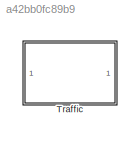
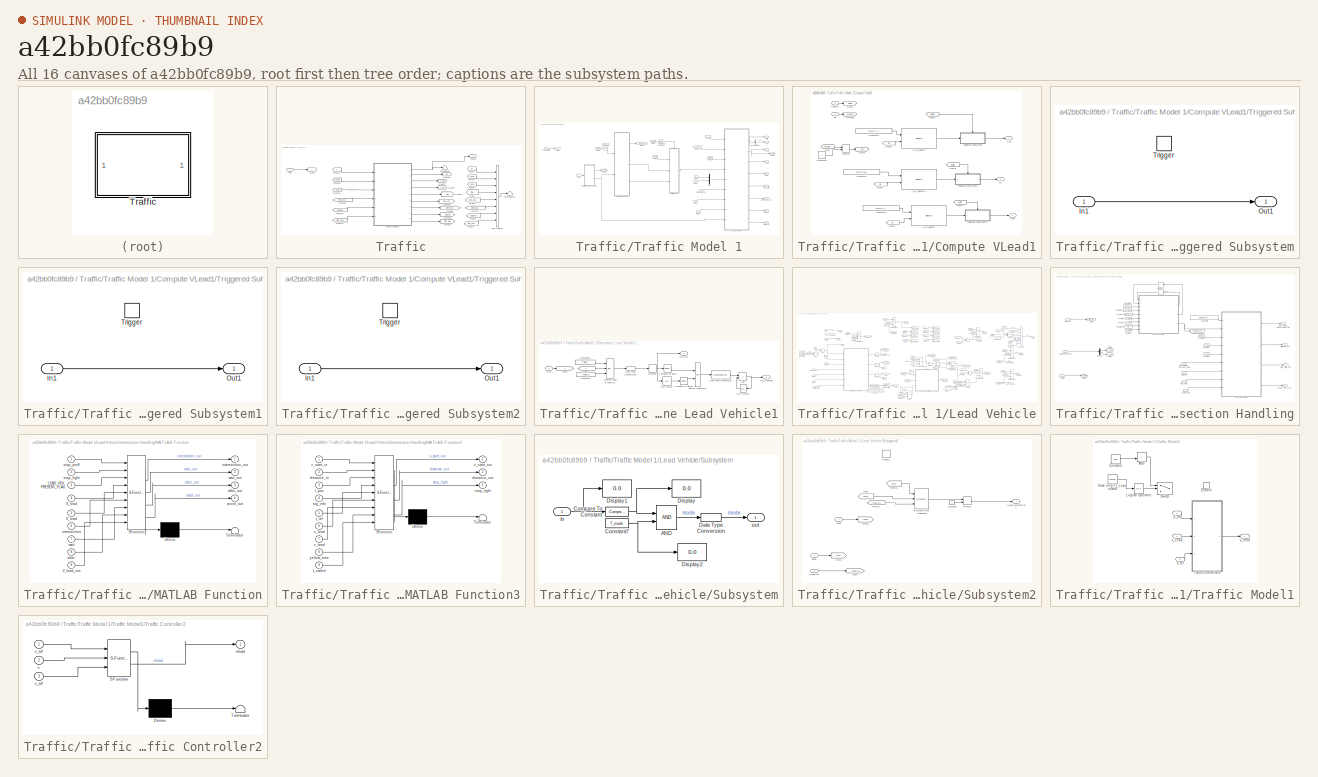
[diagram: thumbnail index - all 16 canvases of the model, root first then tree order]
MODEL slx_a42bb0fc89b9
KIND library
CONFIG AbsTol = auto
CONFIG EnableMultiTasking = off
CONFIG FixedStep = auto
CONFIG MaxStep = auto
CONFIG MinStep = auto
CONFIG RelTol = 1e-3
CONFIG SampleTimeConstraint = Unconstrained
CONFIG Solver = VariableStepAuto
CONFIG SolverName = VariableStepAuto
CONFIG StartTime = 0.0
CONFIG StopTime = 10.0
BLOCK [SubSystem] Traffic
  Ports = [1, 1]
  RequestExecContextInheritance = off
BLOCK [BusCreator] Traffic/Bus Creator
  DisplayOption = bar
  InheritFromInputs = on
  Inputs = 8
  Ports = [8, 1]
BLOCK [From] Traffic/From
  GotoTag = time
BLOCK [From] Traffic/From1
  GotoTag = lead_active
BLOCK [From] Traffic/From10
  GotoTag = x_lead
BLOCK [From] Traffic/From11
  GotoTag = X
BLOCK [From] Traffic/From15
  GotoTag = intersection_lead
BLOCK [From] Traffic/From18
  GotoTag = wait_lead
BLOCK [From] Traffic/From19
  GotoTag = after_lead
BLOCK [From] Traffic/From2
  GotoTag = intersection_lead
BLOCK [From] Traffic/From20
  GotoTag = v_lead
BLOCK [From] Traffic/From3
  GotoTag = wait_lead
BLOCK [From] Traffic/From4
  GotoTag = after_lead
BLOCK [From] Traffic/From5
  GotoTag = v_lead
BLOCK [From] Traffic/From6
  GotoTag = x_lead
BLOCK [From] Traffic/From7
  GotoTag = ds
BLOCK [Goto] Traffic/Goto
  GotoTag = X
BLOCK [Goto] Traffic/Goto10
  GotoTag = time
BLOCK [Goto] Traffic/Goto11
  GotoTag = lead_active
BLOCK [Goto] Traffic/Goto13
  GotoTag = wait_lead
BLOCK [Goto] Traffic/Goto15
  GotoTag = after_lead
BLOCK [Goto] Traffic/Goto16
  GotoTag = ds
BLOCK [Goto] Traffic/Goto7
  GotoTag = x_lead
BLOCK [Goto] Traffic/Goto8
  GotoTag = intersection_lead
BLOCK [Goto] Traffic/Goto9
  GotoTag = v_lead
BLOCK [Inport] Traffic/Pos
BLOCK [Terminator] Traffic/Terminator
BLOCK [Terminator] Traffic/Terminator1
BLOCK [Outport] Traffic/Traffic
  VectorParamsAs1DForOutWhenUnconnected = off
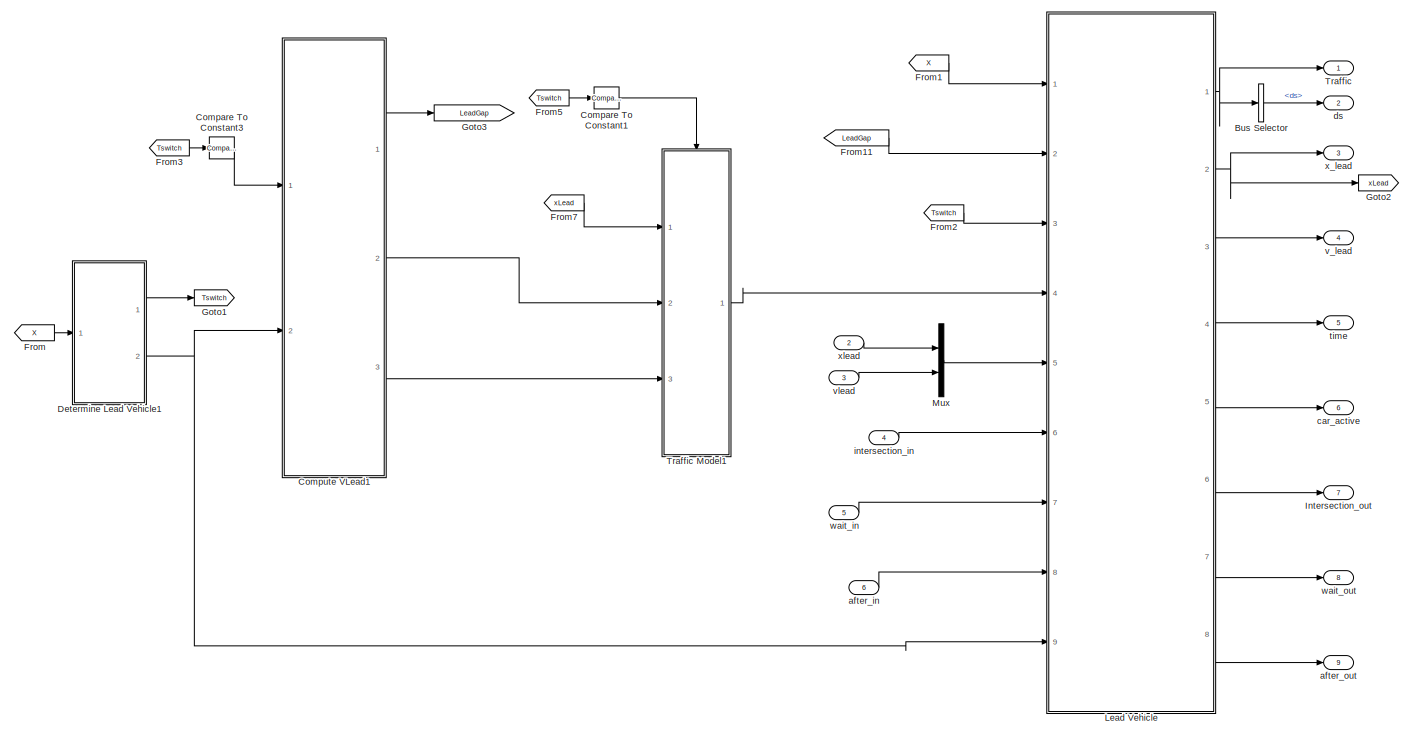
[diagram: Traffic/Traffic Model 1 - part 1/2, most of the canvas]
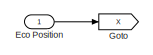
[diagram: Traffic/Traffic Model 1 - part 2/2, top left region]
BLOCK [SubSystem] Traffic/Traffic Model 1
  Ports = [6, 9]
  RequestExecContextInheritance = off
BLOCK [BusSelector] Traffic/Traffic Model 1/Bus Selector
  OutputSignals = ds
  Ports = [1, 1]
BLOCK [Reference] Traffic/Traffic Model 1/Compare To Constant1  REF=simulink/Logic and Bit
Operations/Compare
To Constant
  Ports = [1, 1]
  SourceBlock = simulink/Logic and Bit\nOperations/Compare\nTo Constant
  SourceProductBaseCode = SL
  SourceType = Compare To Constant
BLOCK [Reference] Traffic/Traffic Model 1/Compare To Constant3  REF=simulink/Logic and Bit
Operations/Compare
To Constant
  Ports = [1, 1]
  SourceBlock = simulink/Logic and Bit\nOperations/Compare\nTo Constant
  SourceProductBaseCode = SL
  SourceType = Compare To Constant
BLOCK [SubSystem] Traffic/Traffic Model 1/Compute VLead1
  Ports = [2, 3]
  RequestExecContextInheritance = off
BLOCK [Constant] Traffic/Traffic Model 1/Compute VLead1/Constant1
  Value = Traffic.LeadEntry
BLOCK [Constant] Traffic/Traffic Model 1/Compute VLead1/Constant2
  Value = Traffic.x_ref
BLOCK [Constant] Traffic/Traffic Model 1/Compute VLead1/Constant3
BLOCK [Constant] Traffic/Traffic Model 1/Compute VLead1/Constant4
  Value = Traffic.v_ref
BLOCK [From] Traffic/Traffic Model 1/Compute VLead1/From
  GotoTag = VehNum
BLOCK [From] Traffic/Traffic Model 1/Compute VLead1/From1
  GotoTag = idx
BLOCK [From] Traffic/Traffic Model 1/Compute VLead1/From2
  GotoTag = idx
BLOCK [From] Traffic/Traffic Model 1/Compute VLead1/From3
  GotoTag = tswitch
BLOCK [From] Traffic/Traffic Model 1/Compute VLead1/From4
  GotoTag = tswitch
BLOCK [From] Traffic/Traffic Model 1/Compute VLead1/From5
  GotoTag = idx
BLOCK [From] Traffic/Traffic Model 1/Compute VLead1/From6
  GotoTag = tswitch
BLOCK [Goto] Traffic/Traffic Model 1/Compute VLead1/Goto1
  GotoTag = tswitch
BLOCK [Goto] Traffic/Traffic Model 1/Compute VLead1/Goto123
  GotoTag = VehNum
BLOCK [Goto] Traffic/Traffic Model 1/Compute VLead1/Goto2
  GotoTag = idx
BLOCK [MinMax] Traffic/Traffic Model 1/Compute VLead1/MinMax
  Function = max
  InputSameDT = on
  Inputs = 2
  Ports = [2, 1]
BLOCK [SubSystem] Traffic/Traffic Model 1/Compute VLead1/Triggered Subsystem
  Ports = [1, 1, 0, 1]
  RequestExecContextInheritance = off
  TreatAsAtomicUnit = on
BLOCK [Inport] Traffic/Traffic Model 1/Compute VLead1/Triggered Subsystem/In1
  PortDimensions = [8000 1]
BLOCK [Outport] Traffic/Traffic Model 1/Compute VLead1/Triggered Subsystem/Out1
  VectorParamsAs1DForOutWhenUnconnected = off
BLOCK [TriggerPort] Traffic/Traffic Model 1/Compute VLead1/Triggered Subsystem/Trigger
  Ports = []
  StatesWhenEnabling = held
  VariantControl = Variant
BLOCK [SubSystem] Traffic/Traffic Model 1/Compute VLead1/Triggered Subsystem1
  Ports = [1, 1, 0, 1]
  RequestExecContextInheritance = off
  TreatAsAtomicUnit = on
BLOCK [Inport] Traffic/Traffic Model 1/Compute VLead1/Triggered Subsystem1/In1
  PortDimensions = [8000 1]
BLOCK [Outport] Traffic/Traffic Model 1/Compute VLead1/Triggered Subsystem1/Out1
  VectorParamsAs1DForOutWhenUnconnected = off
BLOCK [TriggerPort] Traffic/Traffic Model 1/Compute VLead1/Triggered Subsystem1/Trigger
  Ports = []
  StatesWhenEnabling = held
  VariantControl = Variant
BLOCK [SubSystem] Traffic/Traffic Model 1/Compute VLead1/Triggered Subsystem2
  Ports = [1, 1, 0, 1]
  RequestExecContextInheritance = off
  TreatAsAtomicUnit = on
BLOCK [Inport] Traffic/Traffic Model 1/Compute VLead1/Triggered Subsystem2/In1
  PortDimensions = 1
BLOCK [Outport] Traffic/Traffic Model 1/Compute VLead1/Triggered Subsystem2/Out1
  VectorParamsAs1DForOutWhenUnconnected = off
BLOCK [TriggerPort] Traffic/Traffic Model 1/Compute VLead1/Triggered Subsystem2/Trigger
  Ports = []
  StatesWhenEnabling = held
  VariantControl = Variant
BLOCK [Outport] Traffic/Traffic Model 1/Compute VLead1/V_ref
  InitialOutput = ones(8000,1)
  Port = 2
  PortDimensions = [8000 1]
  VectorParamsAs1DForOutWhenUnconnected = off
BLOCK [Inport] Traffic/Traffic Model 1/Compute VLead1/Veh
  Port = 2
  PortDimensions = 1
BLOCK [Outport] Traffic/Traffic Model 1/Compute VLead1/X_ref
  Port = 3
  PortDimensions = [8000 1]
  VectorParamsAs1DForOutWhenUnconnected = off
BLOCK [Inport] Traffic/Traffic Model 1/Compute VLead1/tswitch
  PortDimensions = 1
BLOCK [Selector] Traffic/Traffic Model 1/Compute VLead1/v_ref_selector
  IndexOptions = Select all,Index vector (port)
  Indices = [1 3],1
  InputPortWidth = 3
  NumberOfDimensions = 2
  OutputSizes = 1,1
  Ports = [2, 1]
BLOCK [Outport] Traffic/Traffic Model 1/Compute VLead1/x0
  PortDimensions = 1
  VectorParamsAs1DForOutWhenUnconnected = off
BLOCK [Selector] Traffic/Traffic Model 1/Compute VLead1/x_ref_selector
  IndexOptions = Select all,Index vector (port)
  Indices = [1 3],1
  InputPortWidth = 3
  NumberOfDimensions = 2
  OutputSizes = 1,1
  Ports = [2, 1]
BLOCK [Selector] Traffic/Traffic Model 1/Compute VLead1/x_ref_selector1
  IndexOptions = Index vector (port)
  Indices = [1 3]
  InputPortWidth = 40
  OutputSizes = 1
  Ports = [2, 1]
BLOCK [SubSystem] Traffic/Traffic Model 1/Determine Lead Vehicle1
  Ports = [1, 2]
  RequestExecContextInheritance = off
BLOCK [Sum] Traffic/Traffic Model 1/Determine Lead Vehicle1/Add
  IconShape = rectangular
  Ports = [2, 1]
BLOCK [Reference] Traffic/Traffic Model 1/Determine Lead Vehicle1/Compare To Zero  REF=simulink/Logic and Bit
Operations/Compare
To Zero
  Ports = [1, 1]
  SourceBlock = simulink/Logic and Bit\nOperations/Compare\nTo Zero
  SourceProductBaseCode = SL
  SourceType = Compare To Zero
BLOCK [Reference] Traffic/Traffic Model 1/Determine Lead Vehicle1/Compare To Zero1  REF=simulink/Logic and Bit
Operations/Compare
To Zero
  Ports = [1, 1]
  SourceBlock = simulink/Logic and Bit\nOperations/Compare\nTo Zero
  SourceProductBaseCode = SL
  SourceType = Compare To Zero
BLOCK [Constant] Traffic/Traffic Model 1/Determine Lead Vehicle1/Constant2
  Value = Traffic.X_0
BLOCK [Constant] Traffic/Traffic Model 1/Determine Lead Vehicle1/Constant3
  Value = Traffic.X_f
BLOCK [DataTypeConversion] Traffic/Traffic Model 1/Determine Lead Vehicle1/Data Type Conversion
  RndMeth = Floor
  SaturateOnIntegerOverflow = off
BLOCK [DataTypeConversion] Traffic/Traffic Model 1/Determine Lead Vehicle1/Data Type Conversion1
  OutDataTypeStr = double
  RndMeth = Floor
  SaturateOnIntegerOverflow = off
BLOCK [From] Traffic/Traffic Model 1/Determine Lead Vehicle1/From1
  GotoTag = X
BLOCK [Goto] Traffic/Traffic Model 1/Determine Lead Vehicle1/Goto
  GotoTag = X
BLOCK [Reference] Traffic/Traffic Model 1/Determine Lead Vehicle1/Interval Test Dynamic1  REF=simulink/Logic and Bit
Operations/Interval Test
Dynamic
  Ports = [3, 1]
  SourceBlock = simulink/Logic and Bit\nOperations/Interval Test\nDynamic
  SourceProductBaseCode = SL
  SourceType = Interval Test Dynamic
BLOCK [Logic] Traffic/Traffic Model 1/Determine Lead Vehicle1/Logical Operator1
  OutDataTypeStr = boolean
  Ports = [2, 1]
BLOCK [MinMax] Traffic/Traffic Model 1/Determine Lead Vehicle1/MinMax
  Function = max
  Ports = [1, 1]
BLOCK [Inport] Traffic/Traffic Model 1/Determine Lead Vehicle1/Pos
BLOCK [Outport] Traffic/Traffic Model 1/Determine Lead Vehicle1/TSwitch
  VectorParamsAs1DForOutWhenUnconnected = off
BLOCK [UnitDelay] Traffic/Traffic Model 1/Determine Lead Vehicle1/Unit Delay
  HasFrameUpgradeWarning = on
  SampleTime = -1
BLOCK [UnitDelay] Traffic/Traffic Model 1/Determine Lead Vehicle1/Unit Delay3
  HasFrameUpgradeWarning = on
  SampleTime = -1
BLOCK [Outport] Traffic/Traffic Model 1/Determine Lead Vehicle1/Veh Number
  Port = 2
  VarSizeSig = No
  VectorParamsAs1DForOutWhenUnconnected = off
BLOCK [Inport] Traffic/Traffic Model 1/Eco Position
BLOCK [From] Traffic/Traffic Model 1/From
  GotoTag = X
BLOCK [From] Traffic/Traffic Model 1/From1
  GotoTag = X
BLOCK [From] Traffic/Traffic Model 1/From11
  GotoTag = LeadGap
BLOCK [From] Traffic/Traffic Model 1/From2
  GotoTag = Tswitch
BLOCK [From] Traffic/Traffic Model 1/From3
  GotoTag = Tswitch
BLOCK [From] Traffic/Traffic Model 1/From5
  GotoTag = Tswitch
BLOCK [From] Traffic/Traffic Model 1/From7
  GotoTag = xLead
BLOCK [Goto] Traffic/Traffic Model 1/Goto
  GotoTag = X
BLOCK [Goto] Traffic/Traffic Model 1/Goto1
  GotoTag = Tswitch
BLOCK [Goto] Traffic/Traffic Model 1/Goto2
  GotoTag = xLead
BLOCK [Goto] Traffic/Traffic Model 1/Goto3
  GotoTag = LeadGap
BLOCK [Outport] Traffic/Traffic Model 1/Intersection_out
  Port = 7
  VectorParamsAs1DForOutWhenUnconnected = off
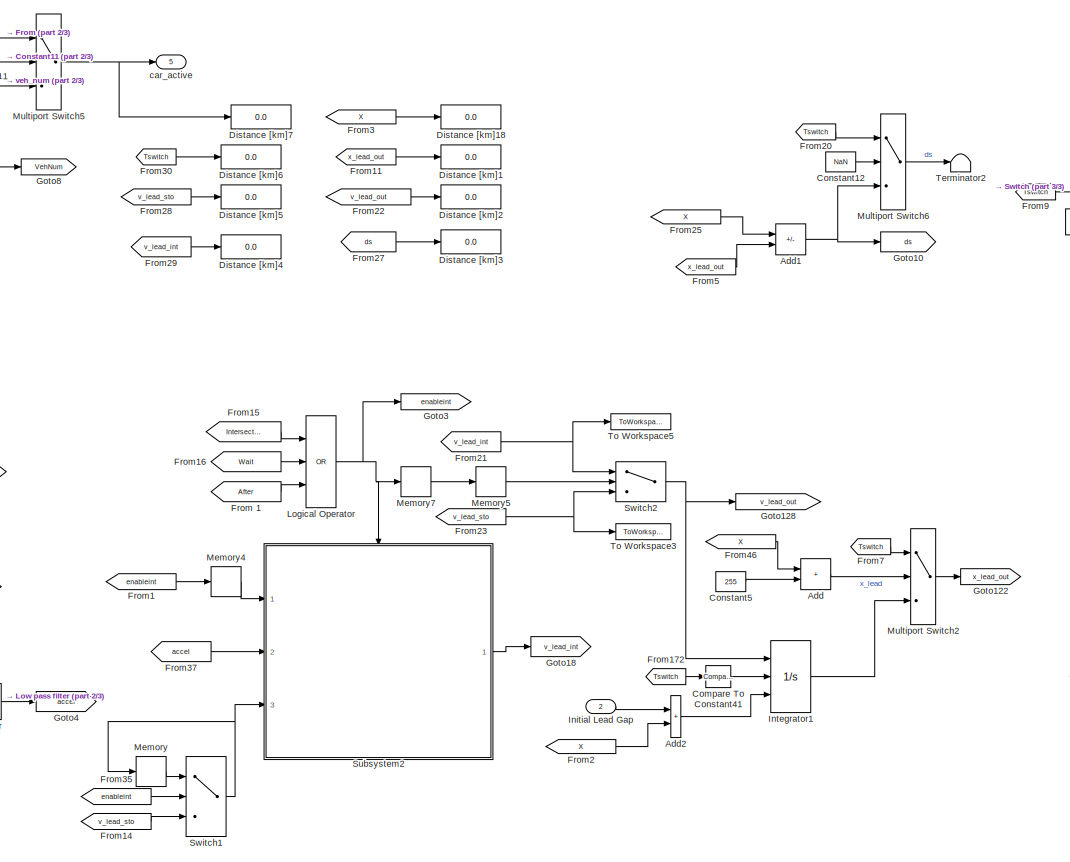
[diagram: Traffic/Traffic Model 1/Lead Vehicle - part 1/3, center side, full height]
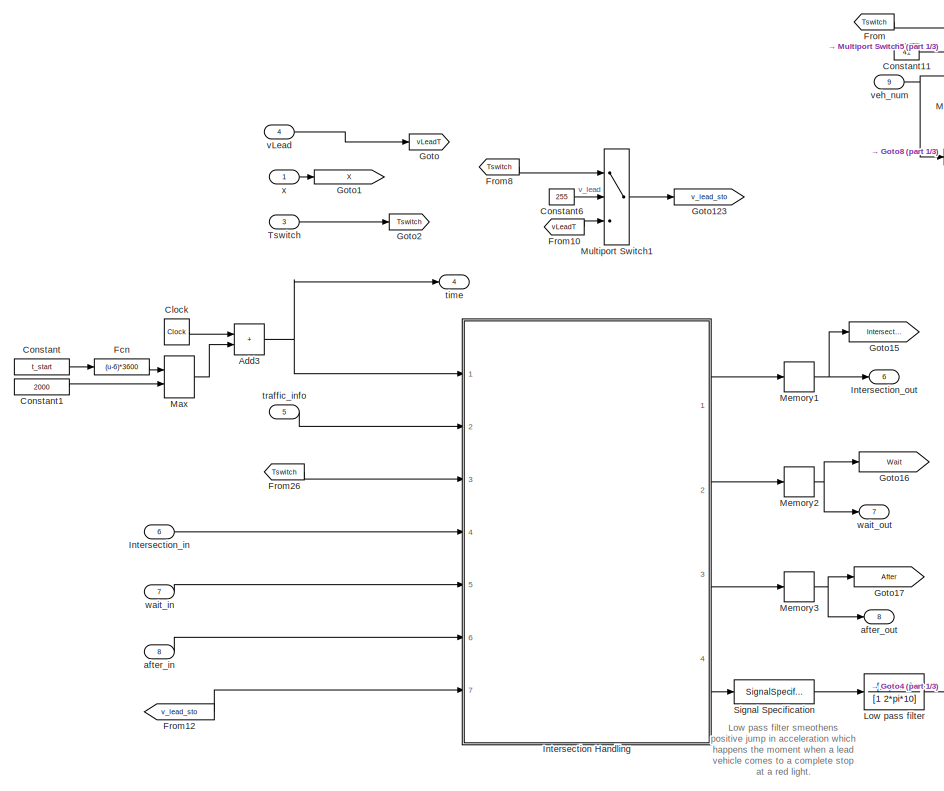
[diagram: Traffic/Traffic Model 1/Lead Vehicle - part 2/3, left side, full height]
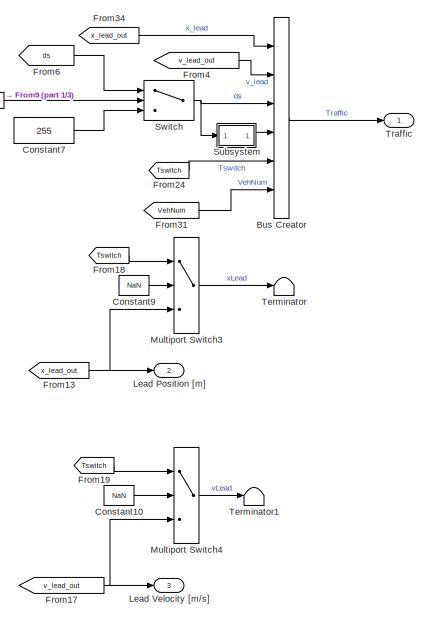
[diagram: Traffic/Traffic Model 1/Lead Vehicle - part 3/3, middle right region]
BLOCK [SubSystem] Traffic/Traffic Model 1/Lead Vehicle
  MinAlgLoopOccurrences = on
  Ports = [9, 8]
  RequestExecContextInheritance = off
BLOCK [Sum] Traffic/Traffic Model 1/Lead Vehicle/Add
  IconShape = rectangular
  Ports = [2, 1]
BLOCK [Sum] Traffic/Traffic Model 1/Lead Vehicle/Add1
  IconShape = rectangular
  Inputs = -+
  Ports = [2, 1]
BLOCK [Sum] Traffic/Traffic Model 1/Lead Vehicle/Add2
  IconShape = rectangular
  Ports = [2, 1]
BLOCK [Sum] Traffic/Traffic Model 1/Lead Vehicle/Add3
  IconShape = rectangular
  Ports = [2, 1]
BLOCK [BusCreator] Traffic/Traffic Model 1/Lead Vehicle/Bus Creator
  DisplayOption = bar
  InheritFromInputs = on
  Inputs = 6
  Ports = [6, 1]
BLOCK [Clock] Traffic/Traffic Model 1/Lead Vehicle/Clock
  Decimation = 100
BLOCK [Reference] Traffic/Traffic Model 1/Lead Vehicle/Compare To Constant41  REF=simulink/Logic and Bit
Operations/Compare
To Constant
  Ports = [1, 1]
  SourceBlock = simulink/Logic and Bit\nOperations/Compare\nTo Constant
  SourceProductBaseCode = SL
  SourceType = Compare To Constant
BLOCK [Constant] Traffic/Traffic Model 1/Lead Vehicle/Constant
  Value = t_start
BLOCK [Constant] Traffic/Traffic Model 1/Lead Vehicle/Constant1
  Value = 2000
BLOCK [Constant] Traffic/Traffic Model 1/Lead Vehicle/Constant10
  Value = NaN
BLOCK [Constant] Traffic/Traffic Model 1/Lead Vehicle/Constant11
  Value = 41
BLOCK [Constant] Traffic/Traffic Model 1/Lead Vehicle/Constant12
  Value = NaN
BLOCK [Constant] Traffic/Traffic Model 1/Lead Vehicle/Constant5
  Value = 255
BLOCK [Constant] Traffic/Traffic Model 1/Lead Vehicle/Constant6
  Value = 255
BLOCK [Constant] Traffic/Traffic Model 1/Lead Vehicle/Constant7
  Value = 255
BLOCK [Constant] Traffic/Traffic Model 1/Lead Vehicle/Constant9
  Value = NaN
BLOCK [Display] Traffic/Traffic Model 1/Lead Vehicle/Distance [km]1
  Decimation = 2
  Format = bank
  Ports = [1]
BLOCK [Display] Traffic/Traffic Model 1/Lead Vehicle/Distance [km]18
  Decimation = 2
  Format = bank
  Ports = [1]
BLOCK [Display] Traffic/Traffic Model 1/Lead Vehicle/Distance [km]2
  Decimation = 2
  Format = bank
  Ports = [1]
BLOCK [Display] Traffic/Traffic Model 1/Lead Vehicle/Distance [km]3
  Decimation = 2
  Format = bank
  Ports = [1]
BLOCK [Display] Traffic/Traffic Model 1/Lead Vehicle/Distance [km]4
  Decimation = 2
  Format = bank
  Ports = [1]
BLOCK [Display] Traffic/Traffic Model 1/Lead Vehicle/Distance [km]5
  Decimation = 2
  Format = bank
  Ports = [1]
BLOCK [Display] Traffic/Traffic Model 1/Lead Vehicle/Distance [km]6
  Decimation = 2
  Format = bank
  Ports = [1]
BLOCK [Display] Traffic/Traffic Model 1/Lead Vehicle/Distance [km]7
  Decimation = 2
  Format = bank
  Ports = [1]
BLOCK [Fcn] Traffic/Traffic Model 1/Lead Vehicle/Fcn
  Expr = (u-6)*3600
BLOCK [From] Traffic/Traffic Model 1/Lead Vehicle/From
  GotoTag = Tswitch
BLOCK [From] Traffic/Traffic Model 1/Lead Vehicle/From 1
  GotoTag = After
BLOCK [From] Traffic/Traffic Model 1/Lead Vehicle/From1
  GotoTag = enableint
BLOCK [From] Traffic/Traffic Model 1/Lead Vehicle/From10
  GotoTag = vLeadT
BLOCK [From] Traffic/Traffic Model 1/Lead Vehicle/From11
  GotoTag = x_lead_out
BLOCK [From] Traffic/Traffic Model 1/Lead Vehicle/From12
  GotoTag = v_lead_sto
BLOCK [From] Traffic/Traffic Model 1/Lead Vehicle/From13
  GotoTag = x_lead_out
BLOCK [From] Traffic/Traffic Model 1/Lead Vehicle/From14
  GotoTag = v_lead_sto
BLOCK [From] Traffic/Traffic Model 1/Lead Vehicle/From15
  GotoTag = Intersection
BLOCK [From] Traffic/Traffic Model 1/Lead Vehicle/From16
  GotoTag = Wait
BLOCK [From] Traffic/Traffic Model 1/Lead Vehicle/From17
  GotoTag = v_lead_out
BLOCK [From] Traffic/Traffic Model 1/Lead Vehicle/From172
  GotoTag = Tswitch
BLOCK [From] Traffic/Traffic Model 1/Lead Vehicle/From18
  GotoTag = Tswitch
BLOCK [From] Traffic/Traffic Model 1/Lead Vehicle/From19
  GotoTag = Tswitch
BLOCK [From] Traffic/Traffic Model 1/Lead Vehicle/From2
  GotoTag = X
BLOCK [From] Traffic/Traffic Model 1/Lead Vehicle/From20
  GotoTag = Tswitch
BLOCK [From] Traffic/Traffic Model 1/Lead Vehicle/From21
  GotoTag = v_lead_int
BLOCK [From] Traffic/Traffic Model 1/Lead Vehicle/From22
  GotoTag = v_lead_out
BLOCK [From] Traffic/Traffic Model 1/Lead Vehicle/From23
  GotoTag = v_lead_sto
BLOCK [From] Traffic/Traffic Model 1/Lead Vehicle/From24
  GotoTag = Tswitch
BLOCK [From] Traffic/Traffic Model 1/Lead Vehicle/From25
  GotoTag = X
BLOCK [From] Traffic/Traffic Model 1/Lead Vehicle/From26
  GotoTag = Tswitch
BLOCK [From] Traffic/Traffic Model 1/Lead Vehicle/From27
  GotoTag = ds
BLOCK [From] Traffic/Traffic Model 1/Lead Vehicle/From28
  GotoTag = v_lead_sto
BLOCK [From] Traffic/Traffic Model 1/Lead Vehicle/From29
  GotoTag = v_lead_int
BLOCK [From] Traffic/Traffic Model 1/Lead Vehicle/From3
  GotoTag = X
BLOCK [From] Traffic/Traffic Model 1/Lead Vehicle/From30
  GotoTag = Tswitch
BLOCK [From] Traffic/Traffic Model 1/Lead Vehicle/From31
  GotoTag = VehNum
BLOCK [From] Traffic/Traffic Model 1/Lead Vehicle/From34
  GotoTag = x_lead_out
BLOCK [From] Traffic/Traffic Model 1/Lead Vehicle/From35
  GotoTag = enableint
BLOCK [From] Traffic/Traffic Model 1/Lead Vehicle/From37
  GotoTag = accel
BLOCK [From] Traffic/Traffic Model 1/Lead Vehicle/From4
  GotoTag = v_lead_out
BLOCK [From] Traffic/Traffic Model 1/Lead Vehicle/From46
  GotoTag = X
BLOCK [From] Traffic/Traffic Model 1/Lead Vehicle/From5
  GotoTag = x_lead_out
BLOCK [From] Traffic/Traffic Model 1/Lead Vehicle/From6
  GotoTag = ds
BLOCK [From] Traffic/Traffic Model 1/Lead Vehicle/From7
  GotoTag = Tswitch
BLOCK [From] Traffic/Traffic Model 1/Lead Vehicle/From8
  GotoTag = Tswitch
BLOCK [From] Traffic/Traffic Model 1/Lead Vehicle/From9
  GotoTag = Tswitch
BLOCK [Goto] Traffic/Traffic Model 1/Lead Vehicle/Goto
  GotoTag = vLeadT
BLOCK [Goto] Traffic/Traffic Model 1/Lead Vehicle/Goto1
  GotoTag = X
BLOCK [Goto] Traffic/Traffic Model 1/Lead Vehicle/Goto10
  GotoTag = ds
BLOCK [Goto] Traffic/Traffic Model 1/Lead Vehicle/Goto122
  GotoTag = x_lead_out
BLOCK [Goto] Traffic/Traffic Model 1/Lead Vehicle/Goto123
  GotoTag = v_lead_sto
BLOCK [Goto] Traffic/Traffic Model 1/Lead Vehicle/Goto128
  GotoTag = v_lead_out
BLOCK [Goto] Traffic/Traffic Model 1/Lead Vehicle/Goto15
  GotoTag = Intersection
BLOCK [Goto] Traffic/Traffic Model 1/Lead Vehicle/Goto16
  GotoTag = Wait
BLOCK [Goto] Traffic/Traffic Model 1/Lead Vehicle/Goto17
  GotoTag = After
BLOCK [Goto] Traffic/Traffic Model 1/Lead Vehicle/Goto18
  GotoTag = v_lead_int
BLOCK [Goto] Traffic/Traffic Model 1/Lead Vehicle/Goto2
  GotoTag = Tswitch
BLOCK [Goto] Traffic/Traffic Model 1/Lead Vehicle/Goto3
  GotoTag = enableint
BLOCK [Goto] Traffic/Traffic Model 1/Lead Vehicle/Goto4
  GotoTag = accel
BLOCK [Goto] Traffic/Traffic Model 1/Lead Vehicle/Goto8
  GotoTag = VehNum
BLOCK [Inport] Traffic/Traffic Model 1/Lead Vehicle/Initial Lead Gap
  Port = 2
BLOCK [Integrator] Traffic/Traffic Model 1/Lead Vehicle/Integrator1
  ExternalReset = rising
  InitialCondition = 2050
  InitialConditionSource = external
  LimitOutput = on
  LowerSaturationLimit = 0
  Ports = [3, 1]
BLOCK [SubSystem] Traffic/Traffic Model 1/Lead Vehicle/Intersection Handling
  Ports = [7, 4]
  RequestExecContextInheritance = off
BLOCK [Inport] Traffic/Traffic Model 1/Lead Vehicle/Intersection Handling/After_Flag
  Port = 6
BLOCK [Outport] Traffic/Traffic Model 1/Lead Vehicle/Intersection Handling/After_Flag_Out
  Port = 3
  VectorParamsAs1DForOutWhenUnconnected = off
BLOCK [Constant] Traffic/Traffic Model 1/Lead Vehicle/Intersection Handling/Constant1
  Value = sig_info
BLOCK [Constant] Traffic/Traffic Model 1/Lead Vehicle/Intersection Handling/Constant4
  Value = Int.Y
BLOCK [Constant] Traffic/Traffic Model 1/Lead Vehicle/Intersection Handling/Constant6
  Value = Int.I_pos
BLOCK [Constant] Traffic/Traffic Model 1/Lead Vehicle/Intersection Handling/Constant8
  Value = stopping_profile
BLOCK [Demux] Traffic/Traffic Model 1/Lead Vehicle/Intersection Handling/Demux
  Outputs = 2
  Ports = [1, 2]
BLOCK [From] Traffic/Traffic Model 1/Lead Vehicle/Intersection Handling/From
  GotoTag = Tswitch
BLOCK [From] Traffic/Traffic Model 1/Lead Vehicle/Intersection Handling/From22
  GotoTag = time_ref
BLOCK [From] Traffic/Traffic Model 1/Lead Vehicle/Intersection Handling/From38
  GotoTag = x_lead
BLOCK [From] Traffic/Traffic Model 1/Lead Vehicle/Intersection Handling/From39
  GotoTag = x_lead
BLOCK [From] Traffic/Traffic Model 1/Lead Vehicle/Intersection Handling/From40
  GotoTag = v_lead
BLOCK [From] Traffic/Traffic Model 1/Lead Vehicle/Intersection Handling/From42
  GotoTag = v_lead
BLOCK [From] Traffic/Traffic Model 1/Lead Vehicle/Intersection Handling/From48
  GotoTag = Tswitch
BLOCK [Goto] Traffic/Traffic Model 1/Lead Vehicle/Intersection Handling/Goto5
  GotoTag = time_ref
BLOCK [Goto] Traffic/Traffic Model 1/Lead Vehicle/Intersection Handling/Goto6
  GotoTag = x_lead
BLOCK [Goto] Traffic/Traffic Model 1/Lead Vehicle/Intersection Handling/Goto7
  GotoTag = v_lead
BLOCK [Goto] Traffic/Traffic Model 1/Lead Vehicle/Intersection Handling/Goto8
  GotoTag = Tswitch
BLOCK [Inport] Traffic/Traffic Model 1/Lead Vehicle/Intersection Handling/Intersection_Approach_Flag
  Port = 4
BLOCK [Outport] Traffic/Traffic Model 1/Lead Vehicle/Intersection Handling/Intersection_Approach_Flag_Out 
  VectorParamsAs1DForOutWhenUnconnected = off
BLOCK [Inport] Traffic/Traffic Model 1/Lead Vehicle/Intersection Handling/LeadPosAndVel
  Port = 2
BLOCK [Outport] Traffic/Traffic Model 1/Lead Vehicle/Intersection Handling/Lead_Veh_Accel
  Port = 4
  VectorParamsAs1DForOutWhenUnconnected = off
BLOCK [SubSystem] Traffic/Traffic Model 1/Lead Vehicle/Intersection Handling/MATLAB Function
  ErrorFcn = Stateflow.Translate.translate
  PermitHierarchicalResolution = ExplicitOnly
  Ports = [9, 4]
  RequestExecContextInheritance = off
  SFBlockType = MATLAB Function
  TreatAsAtomicUnit = on
BLOCK [Demux] Traffic/Traffic Model 1/Lead Vehicle/Intersection Handling/MATLAB Function/ Demux 
  Outputs = 1
  Ports = [1, 1]
BLOCK [S-Function] Traffic/Traffic Model 1/Lead Vehicle/Intersection Handling/MATLAB Function/ SFunction 
  EnableBusSupport = off
  FunctionName = sf_sfun
  PortCounts = [9 5]
  Ports = [9, 5]
  SFcnIsStateOwnerBlock = off
  SFunctionDeploymentMode = off
  Tag = Stateflow S-Function 4
BLOCK [Terminator] Traffic/Traffic Model 1/Lead Vehicle/Intersection Handling/MATLAB Function/ Terminator 
BLOCK [Inport] Traffic/Traffic Model 1/Lead Vehicle/Intersection Handling/MATLAB Function/LEAD_VEH_PRESENT_FLAG
  Port = 3
BLOCK [Inport] Traffic/Traffic Model 1/Lead Vehicle/Intersection Handling/MATLAB Function/V_lead
  Port = 5
BLOCK [Inport] Traffic/Traffic Model 1/Lead Vehicle/Intersection Handling/MATLAB Function/V_lead_sto
  Port = 9
BLOCK [Inport] Traffic/Traffic Model 1/Lead Vehicle/Intersection Handling/MATLAB Function/X_lead
  Port = 4
BLOCK [Outport] Traffic/Traffic Model 1/Lead Vehicle/Intersection Handling/MATLAB Function/accel_out
  Port = 4
  VectorParamsAs1DForOutWhenUnconnected = off
BLOCK [Inport] Traffic/Traffic Model 1/Lead Vehicle/Intersection Handling/MATLAB Function/after
  Port = 8
BLOCK [Outport] Traffic/Traffic Model 1/Lead Vehicle/Intersection Handling/MATLAB Function/after_out
  Port = 3
  VectorParamsAs1DForOutWhenUnconnected = off
BLOCK [Inport] Traffic/Traffic Model 1/Lead Vehicle/Intersection Handling/MATLAB Function/intersection
  Port = 6
BLOCK [Outport] Traffic/Traffic Model 1/Lead Vehicle/Intersection Handling/MATLAB Function/intersection_out
  VectorParamsAs1DForOutWhenUnconnected = off
BLOCK [Inport] Traffic/Traffic Model 1/Lead Vehicle/Intersection Handling/MATLAB Function/stop_light
  Port = 2
BLOCK [Inport] Traffic/Traffic Model 1/Lead Vehicle/Intersection Handling/MATLAB Function/stop_proff
BLOCK [Inport] Traffic/Traffic Model 1/Lead Vehicle/Intersection Handling/MATLAB Function/wait
  Port = 7
BLOCK [Outport] Traffic/Traffic Model 1/Lead Vehicle/Intersection Handling/MATLAB Function/wait_out
  Port = 2
  VectorParamsAs1DForOutWhenUnconnected = off
BLOCK [SubSystem] Traffic/Traffic Model 1/Lead Vehicle/Intersection Handling/MATLAB Function3
  ErrorFcn = Stateflow.Translate.translate
  PermitHierarchicalResolution = ExplicitOnly
  Ports = [9, 3]
  RequestExecContextInheritance = off
  SFBlockType = MATLAB Function
  TreatAsAtomicUnit = on
BLOCK [Demux] Traffic/Traffic Model 1/Lead Vehicle/Intersection Handling/MATLAB Function3/ Demux 
  Outputs = 1
  Ports = [1, 1]
BLOCK [S-Function] Traffic/Traffic Model 1/Lead Vehicle/Intersection Handling/MATLAB Function3/ SFunction 
  EnableBusSupport = off
  FunctionName = sf_sfun
  PortCounts = [9 4]
  Ports = [9, 4]
  SFcnIsStateOwnerBlock = off
  SFunctionDeploymentMode = off
  Tag = Stateflow S-Function 5
BLOCK [Terminator] Traffic/Traffic Model 1/Lead Vehicle/Intersection Handling/MATLAB Function3/ Terminator 
BLOCK [Inport] Traffic/Traffic Model 1/Lead Vehicle/Intersection Handling/MATLAB Function3/I_pos
  Port = 3
BLOCK [Inport] Traffic/Traffic Model 1/Lead Vehicle/Intersection Handling/MATLAB Function3/distance_in
  Port = 2
BLOCK [Outport] Traffic/Traffic Model 1/Lead Vehicle/Intersection Handling/MATLAB Function3/distance_out
  Port = 2
  VectorParamsAs1DForOutWhenUnconnected = off
BLOCK [Inport] Traffic/Traffic Model 1/Lead Vehicle/Intersection Handling/MATLAB Function3/sig_info
  Port = 4
BLOCK [Outport] Traffic/Traffic Model 1/Lead Vehicle/Intersection Handling/MATLAB Function3/stop_light
  Port = 3
  VectorParamsAs1DForOutWhenUnconnected = off
BLOCK [Inport] Traffic/Traffic Model 1/Lead Vehicle/Intersection Handling/MATLAB Function3/t_ref
  Port = 5
BLOCK [Inport] Traffic/Traffic Model 1/Lead Vehicle/Intersection Handling/MATLAB Function3/t_switch
  Port = 9
BLOCK [Inport] Traffic/Traffic Model 1/Lead Vehicle/Intersection Handling/MATLAB Function3/v_lead
  Port = 7
BLOCK [Inport] Traffic/Traffic Model 1/Lead Vehicle/Intersection Handling/MATLAB Function3/x_lead
  Port = 6
BLOCK [Inport] Traffic/Traffic Model 1/Lead Vehicle/Intersection Handling/MATLAB Function3/x_start_in
BLOCK [Outport] Traffic/Traffic Model 1/Lead Vehicle/Intersection Handling/MATLAB Function3/x_start_out
  VectorParamsAs1DForOutWhenUnconnected = off
BLOCK [Inport] Traffic/Traffic Model 1/Lead Vehicle/Intersection Handling/MATLAB Function3/yellow_time
  Port = 8
BLOCK [Memory] Traffic/Traffic Model 1/Lead Vehicle/Intersection Handling/Memory1
BLOCK [Memory] Traffic/Traffic Model 1/Lead Vehicle/Intersection Handling/Memory2
BLOCK [Inport] Traffic/Traffic Model 1/Lead Vehicle/Intersection Handling/T_switch
  Port = 3
BLOCK [ToWorkspace] Traffic/Traffic Model 1/Lead Vehicle/Intersection Handling/To Workspace3
  FixptAsFi = on
  MaxDataPoints = inf
  Ports = [1]
  SampleTime = -1
  VariableName = stop_light_data
BLOCK [Inport] Traffic/Traffic Model 1/Lead Vehicle/Intersection Handling/Wait_Flag
  Port = 5
BLOCK [Outport] Traffic/Traffic Model 1/Lead Vehicle/Intersection Handling/Wait_Flag_Out
  Port = 2
  VectorParamsAs1DForOutWhenUnconnected = off
BLOCK [Inport] Traffic/Traffic Model 1/Lead Vehicle/Intersection Handling/time_ref
BLOCK [Inport] Traffic/Traffic Model 1/Lead Vehicle/Intersection Handling/v_lead_sto
  Port = 7
BLOCK [Inport] Traffic/Traffic Model 1/Lead Vehicle/Intersection_in
  Port = 6
BLOCK [Outport] Traffic/Traffic Model 1/Lead Vehicle/Intersection_out
  Port = 6
  VectorParamsAs1DForOutWhenUnconnected = off
BLOCK [Outport] Traffic/Traffic Model 1/Lead Vehicle/Lead Position [m]
  Port = 2
  VectorParamsAs1DForOutWhenUnconnected = off
BLOCK [Outport] Traffic/Traffic Model 1/Lead Vehicle/Lead Velocity [m//s]
  Port = 3
  VectorParamsAs1DForOutWhenUnconnected = off
BLOCK [Logic] Traffic/Traffic Model 1/Lead Vehicle/Logical Operator
  AllPortsSameDT = off
  Inputs = 3
  Operator = OR
  OutDataTypeStr = boolean
  Ports = [3, 1]
BLOCK [TransferFcn] Traffic/Traffic Model 1/Lead Vehicle/Low pass filter
  Denominator = [1 2*pi*10]
  Numerator = [2*pi*10]
BLOCK [MinMax] Traffic/Traffic Model 1/Lead Vehicle/Max
  Function = max
  Inputs = 2
  Ports = [2, 1]
BLOCK [Memory] Traffic/Traffic Model 1/Lead Vehicle/Memory
BLOCK [Memory] Traffic/Traffic Model 1/Lead Vehicle/Memory1
BLOCK [Memory] Traffic/Traffic Model 1/Lead Vehicle/Memory2
BLOCK [Memory] Traffic/Traffic Model 1/Lead Vehicle/Memory3
BLOCK [Memory] Traffic/Traffic Model 1/Lead Vehicle/Memory4
BLOCK [Memory] Traffic/Traffic Model 1/Lead Vehicle/Memory5
BLOCK [Memory] Traffic/Traffic Model 1/Lead Vehicle/Memory7
BLOCK [MultiPortSwitch] Traffic/Traffic Model 1/Lead Vehicle/Multiport Switch1
  DataPortOrder = Zero-based contiguous
  DiagnosticForDefault = None
  InputSameDT = off
  Inputs = 2
  Ports = [3, 1]
  SaturateOnIntegerOverflow = off
  zeroidx = on
BLOCK [MultiPortSwitch] Traffic/Traffic Model 1/Lead Vehicle/Multiport Switch2
  DataPortOrder = Zero-based contiguous
  DiagnosticForDefault = None
  InputSameDT = off
  Inputs = 2
  Ports = [3, 1]
  SaturateOnIntegerOverflow = off
  zeroidx = on
BLOCK [MultiPortSwitch] Traffic/Traffic Model 1/Lead Vehicle/Multiport Switch3
  DataPortOrder = Zero-based contiguous
  DiagnosticForDefault = None
  InputSameDT = off
  Inputs = 2
  Ports = [3, 1]
  SaturateOnIntegerOverflow = off
  zeroidx = on
BLOCK [MultiPortSwitch] Traffic/Traffic Model 1/Lead Vehicle/Multiport Switch4
  DataPortOrder = Zero-based contiguous
  DiagnosticForDefault = None
  InputSameDT = off
  Inputs = 2
  Ports = [3, 1]
  SaturateOnIntegerOverflow = off
  zeroidx = on
BLOCK [MultiPortSwitch] Traffic/Traffic Model 1/Lead Vehicle/Multiport Switch5
  DataPortOrder = Zero-based contiguous
  DiagnosticForDefault = None
  InputSameDT = off
  Inputs = 2
  Ports = [3, 1]
  SaturateOnIntegerOverflow = off
  zeroidx = on
BLOCK [MultiPortSwitch] Traffic/Traffic Model 1/Lead Vehicle/Multiport Switch6
  DataPortOrder = Zero-based contiguous
  DiagnosticForDefault = None
  InputSameDT = off
  Inputs = 2
  Ports = [3, 1]
  SaturateOnIntegerOverflow = off
  zeroidx = on
BLOCK [SignalSpecification] Traffic/Traffic Model 1/Lead Vehicle/Signal Specification
  Dimensions = 1
BLOCK [SubSystem] Traffic/Traffic Model 1/Lead Vehicle/Subsystem
  Ports = [1, 1]
  RequestExecContextInheritance = off
BLOCK [Logic] Traffic/Traffic Model 1/Lead Vehicle/Subsystem/AND
  AllPortsSameDT = off
  IconShape = distinctive
  OutDataTypeStr = boolean
  Ports = [2, 1]
BLOCK [Reference] Traffic/Traffic Model 1/Lead Vehicle/Subsystem/Compare To Constant  REF=simulink/Logic and Bit
Operations/Compare
To Constant
  Ports = [1, 1]
  SourceBlock = simulink/Logic and Bit\nOperations/Compare\nTo Constant
  SourceProductBaseCode = SL
  SourceType = Compare To Constant
BLOCK [Constant] Traffic/Traffic Model 1/Lead Vehicle/Subsystem/Constant7
  Value = T_mode
BLOCK [DataTypeConversion] Traffic/Traffic Model 1/Lead Vehicle/Subsystem/Data Type Conversion
  OutDataTypeStr = double
  RndMeth = Floor
  SaturateOnIntegerOverflow = off
BLOCK [Display] Traffic/Traffic Model 1/Lead Vehicle/Subsystem/Display
  Decimation = 1
  Ports = [1]
BLOCK [Display] Traffic/Traffic Model 1/Lead Vehicle/Subsystem/Display1
  Decimation = 1
  Ports = [1]
BLOCK [Display] Traffic/Traffic Model 1/Lead Vehicle/Subsystem/Display2
  Decimation = 1
  Ports = [1]
BLOCK [Inport] Traffic/Traffic Model 1/Lead Vehicle/Subsystem/In
BLOCK [Outport] Traffic/Traffic Model 1/Lead Vehicle/Subsystem/out
  VectorParamsAs1DForOutWhenUnconnected = off
BLOCK [SubSystem] Traffic/Traffic Model 1/Lead Vehicle/Subsystem2
  Ports = [3, 1, 1]
  RequestExecContextInheritance = off
BLOCK [Constant] Traffic/Traffic Model 1/Lead Vehicle/Subsystem2/Constant
  Value = 0
BLOCK [DiscreteIntegrator] Traffic/Traffic Model 1/Lead Vehicle/Subsystem2/Discrete-Time Integrator
  ExternalReset = rising
  ICPrevOutput = DiscIntNeverNeededParam
  ICPrevScaledInput = DiscIntNeverNeededParam
  InitialConditionSetting = Auto
  InitialConditionSource = external
  Ports = [3, 1]
  SampleTime = -1
BLOCK [EnablePort] Traffic/Traffic Model 1/Lead Vehicle/Subsystem2/Enable
  Ports = []
BLOCK [From] Traffic/Traffic Model 1/Lead Vehicle/Subsystem2/From
  GotoTag = resett
BLOCK [From] Traffic/Traffic Model 1/Lead Vehicle/Subsystem2/From13
  GotoTag = accel
BLOCK [From] Traffic/Traffic Model 1/Lead Vehicle/Subsystem2/From18
  GotoTag = v_lead_sto
BLOCK [Goto] Traffic/Traffic Model 1/Lead Vehicle/Subsystem2/Goto
  GotoTag = v_lead_sto
BLOCK [Goto] Traffic/Traffic Model 1/Lead Vehicle/Subsystem2/Goto1
  GotoTag = accel
BLOCK [Goto] Traffic/Traffic Model 1/Lead Vehicle/Subsystem2/Goto2
  GotoTag = resett
BLOCK [MinMax] Traffic/Traffic Model 1/Lead Vehicle/Subsystem2/MinMax
  Function = max
  Inputs = 2
  Ports = [2, 1]
BLOCK [Inport] Traffic/Traffic Model 1/Lead Vehicle/Subsystem2/accel
  Port = 2
BLOCK [Inport] Traffic/Traffic Model 1/Lead Vehicle/Subsystem2/reset 
BLOCK [Outport] Traffic/Traffic Model 1/Lead Vehicle/Subsystem2/v_lead_intersections
  VectorParamsAs1DForOutWhenUnconnected = off
BLOCK [Inport] Traffic/Traffic Model 1/Lead Vehicle/Subsystem2/v_lead_sto 
  Port = 3
BLOCK [Switch] Traffic/Traffic Model 1/Lead Vehicle/Switch
  InputSameDT = off
  SaturateOnIntegerOverflow = off
  Threshold = .5
BLOCK [Switch] Traffic/Traffic Model 1/Lead Vehicle/Switch1
  Criteria = u2 > Threshold
  InputSameDT = off
  SaturateOnIntegerOverflow = off
BLOCK [Switch] Traffic/Traffic Model 1/Lead Vehicle/Switch2
  Criteria = u2 > Threshold
  InputSameDT = off
  SaturateOnIntegerOverflow = off
BLOCK [Terminator] Traffic/Traffic Model 1/Lead Vehicle/Terminator
BLOCK [Terminator] Traffic/Traffic Model 1/Lead Vehicle/Terminator1
BLOCK [Terminator] Traffic/Traffic Model 1/Lead Vehicle/Terminator2
BLOCK [ToWorkspace] Traffic/Traffic Model 1/Lead Vehicle/To Workspace3
  FixptAsFi = on
  MaxDataPoints = inf
  Ports = [1]
  SampleTime = -1
  VariableName = v_lead_sto
BLOCK [ToWorkspace] Traffic/Traffic Model 1/Lead Vehicle/To Workspace5
  FixptAsFi = on
  MaxDataPoints = inf
  Ports = [1]
  SampleTime = -1
  VariableName = v_lead_int
BLOCK [Outport] Traffic/Traffic Model 1/Lead Vehicle/Traffic
  VectorParamsAs1DForOutWhenUnconnected = off
BLOCK [Inport] Traffic/Traffic Model 1/Lead Vehicle/Tswitch
  Port = 3
BLOCK [Inport] Traffic/Traffic Model 1/Lead Vehicle/after_in
  Port = 8
BLOCK [Outport] Traffic/Traffic Model 1/Lead Vehicle/after_out
  Port = 8
  VectorParamsAs1DForOutWhenUnconnected = off
BLOCK [Outport] Traffic/Traffic Model 1/Lead Vehicle/car_active
  Port = 5
  VectorParamsAs1DForOutWhenUnconnected = off
BLOCK [Outport] Traffic/Traffic Model 1/Lead Vehicle/time
  Port = 4
  VectorParamsAs1DForOutWhenUnconnected = off
BLOCK [Inport] Traffic/Traffic Model 1/Lead Vehicle/traffic_info
  Port = 5
BLOCK [Inport] Traffic/Traffic Model 1/Lead Vehicle/vLead
  Port = 4
BLOCK [Inport] Traffic/Traffic Model 1/Lead Vehicle/veh_num
  Port = 9
BLOCK [Inport] Traffic/Traffic Model 1/Lead Vehicle/wait_in
  Port = 7
BLOCK [Outport] Traffic/Traffic Model 1/Lead Vehicle/wait_out
  Port = 7
  VectorParamsAs1DForOutWhenUnconnected = off
BLOCK [Inport] Traffic/Traffic Model 1/Lead Vehicle/x
BLOCK [Mux] Traffic/Traffic Model 1/Mux
  DisplayOption = bar
  Inputs = 2
  Ports = [2, 1]
BLOCK [Outport] Traffic/Traffic Model 1/Traffic
  VectorParamsAs1DForOutWhenUnconnected = off
BLOCK [SubSystem] Traffic/Traffic Model 1/Traffic Model1
  Ports = [3, 1, 1]
  RequestExecContextInheritance = off
BLOCK [Sum] Traffic/Traffic Model 1/Traffic Model1/Add
  Commented = on
  IconShape = rectangular
  Ports = [2, 1]
BLOCK [Constant] Traffic/Traffic Model 1/Traffic Model1/Constant
  Commented = on
  Value = 255
BLOCK [EnablePort] Traffic/Traffic Model 1/Traffic Model1/Enable
  Ports = []
BLOCK [Logic] Traffic/Traffic Model 1/Traffic Model1/Logical Operator
  AllPortsSameDT = off
  Commented = on
  Operator = NOT
  OutDataTypeStr = boolean
  Ports = [1, 1]
BLOCK [Switch] Traffic/Traffic Model 1/Traffic Model1/Switch
  Commented = on
  Criteria = u2 > Threshold
  InputSameDT = off
  SaturateOnIntegerOverflow = off
BLOCK [SubSystem] Traffic/Traffic Model 1/Traffic Model1/Traffic Controller2
  ErrorFcn = Stateflow.Translate.translate
  PermitHierarchicalResolution = ExplicitOnly
  Ports = [3, 1]
  RequestExecContextInheritance = off
  SFBlockType = MATLAB Function
  TreatAsAtomicUnit = on
BLOCK [Demux] Traffic/Traffic Model 1/Traffic Model1/Traffic Controller2/ Demux 
  Outputs = 1
  Ports = [1, 1]
BLOCK [S-Function] Traffic/Traffic Model 1/Traffic Model1/Traffic Controller2/ SFunction 
  EnableBusSupport = off
  FunctionName = sf_sfun
  PortCounts = [3 2]
  Ports = [3, 2]
  SFcnIsStateOwnerBlock = off
  SFunctionDeploymentMode = off
  Tag = Stateflow S-Function 29
BLOCK [Terminator] Traffic/Traffic Model 1/Traffic Model1/Traffic Controller2/ Terminator 
BLOCK [Inport] Traffic/Traffic Model 1/Traffic Model1/Traffic Controller2/v_ref
  Port = 3
BLOCK [Outport] Traffic/Traffic Model 1/Traffic Model1/Traffic Controller2/vlead
  VectorParamsAs1DForOutWhenUnconnected = off
BLOCK [Inport] Traffic/Traffic Model 1/Traffic Model1/Traffic Controller2/x
  Port = 2
BLOCK [Inport] Traffic/Traffic Model 1/Traffic Model1/Traffic Controller2/x_ref
BLOCK [Inport] Traffic/Traffic Model 1/Traffic Model1/X_ref
  Port = 3
BLOCK [Reference] Traffic/Traffic Model 1/Traffic Model1/false only if x_Lead is NaN  REF=simulink/Logic and Bit
Operations/Compare
To Constant
  Commented = on
  Ports = [1, 1]
  SourceBlock = simulink/Logic and Bit\nOperations/Compare\nTo Constant
  SourceProductBaseCode = SL
  SourceType = Compare To Constant
BLOCK [Outport] Traffic/Traffic Model 1/Traffic Model1/v_lead
  VectorParamsAs1DForOutWhenUnconnected = off
BLOCK [Inport] Traffic/Traffic Model 1/Traffic Model1/v_ref
  Port = 2
BLOCK [Inport] Traffic/Traffic Model 1/Traffic Model1/x_Lead
BLOCK [Inport] Traffic/Traffic Model 1/after_in
  Port = 6
BLOCK [Outport] Traffic/Traffic Model 1/after_out
  Port = 9
  VectorParamsAs1DForOutWhenUnconnected = off
BLOCK [Outport] Traffic/Traffic Model 1/car_active
  Port = 6
  VectorParamsAs1DForOutWhenUnconnected = off
BLOCK [Outport] Traffic/Traffic Model 1/ds
  Port = 2
  VectorParamsAs1DForOutWhenUnconnected = off
BLOCK [Inport] Traffic/Traffic Model 1/intersection_in
  Port = 4
BLOCK [Outport] Traffic/Traffic Model 1/time
  Port = 5
  VectorParamsAs1DForOutWhenUnconnected = off
BLOCK [Outport] Traffic/Traffic Model 1/v_lead
  Port = 4
  VectorParamsAs1DForOutWhenUnconnected = off
BLOCK [Inport] Traffic/Traffic Model 1/vlead
  Port = 3
BLOCK [Inport] Traffic/Traffic Model 1/wait_in
  Port = 5
BLOCK [Outport] Traffic/Traffic Model 1/wait_out
  Port = 8
  VectorParamsAs1DForOutWhenUnconnected = off
BLOCK [Outport] Traffic/Traffic Model 1/x_lead
  Port = 3
  VectorParamsAs1DForOutWhenUnconnected = off
BLOCK [Inport] Traffic/Traffic Model 1/xlead
  Port = 2
ANNOTATION Traffic/Traffic Model 1/Lead Vehicle: Low pass filter smeothens positive jump in acceleration which happens the moment when a lead vehicle comes to a complete stop at a red light.
LINE Traffic/Bus Creator:1 -> Traffic/Terminator1:1
LINE Traffic/From10:1 -> Traffic/Traffic Model 1:2
LINE Traffic/From11:1 -> Traffic/Traffic Model 1:1
LINE Traffic/From15:1 -> Traffic/Traffic Model 1:4
LINE Traffic/From18:1 -> Traffic/Traffic Model 1:5
LINE Traffic/From19:1 -> Traffic/Traffic Model 1:6
LINE Traffic/From1:1 -> Traffic/Bus Creator:5
LINE Traffic/From20:1 -> Traffic/Traffic Model 1:3
LINE Traffic/From2:1 -> Traffic/Bus Creator:6
LINE Traffic/From3:1 -> Traffic/Bus Creator:7
LINE Traffic/From4:1 -> Traffic/Bus Creator:8
LINE Traffic/From5:1 -> Traffic/Bus Creator:3
LINE Traffic/From6:1 -> Traffic/Bus Creator:2
LINE Traffic/From7:1 -> Traffic/Bus Creator:1
LINE Traffic/From:1 -> Traffic/Bus Creator:4
LINE Traffic/Pos:1 -> Traffic/Goto:1
LINE Traffic/Traffic Model 1/Bus Selector:1 -> Traffic/Traffic Model 1/ds:1
LINE Traffic/Traffic Model 1/Compare To Constant1:1 -> Traffic/Traffic Model 1/Traffic Model1:enable
LINE Traffic/Traffic Model 1/Compare To Constant3:1 -> Traffic/Traffic Model 1/Compute VLead1:1
LINE Traffic/Traffic Model 1/Compute VLead1/Constant1:1 -> Traffic/Traffic Model 1/Compute VLead1/x_ref_selector1:1
LINE Traffic/Traffic Model 1/Compute VLead1/Constant2:1 -> Traffic/Traffic Model 1/Compute VLead1/x_ref_selector:1
LINE Traffic/Traffic Model 1/Compute VLead1/Constant3:1 -> Traffic/Traffic Model 1/Compute VLead1/MinMax:2
LINE Traffic/Traffic Model 1/Compute VLead1/Constant4:1 -> Traffic/Traffic Model 1/Compute VLead1/v_ref_selector:1
LINE Traffic/Traffic Model 1/Compute VLead1/From1:1 -> Traffic/Traffic Model 1/Compute VLead1/x_ref_selector1:2
LINE Traffic/Traffic Model 1/Compute VLead1/From2:1 -> Traffic/Traffic Model 1/Compute VLead1/x_ref_selector:2
LINE Traffic/Traffic Model 1/Compute VLead1/From3:1 -> Traffic/Traffic Model 1/Compute VLead1/Triggered Subsystem:trigger
LINE Traffic/Traffic Model 1/Compute VLead1/From4:1 -> Traffic/Traffic Model 1/Compute VLead1/Triggered Subsystem1:trigger
LINE Traffic/Traffic Model 1/Compute VLead1/From5:1 -> Traffic/Traffic Model 1/Compute VLead1/v_ref_selector:2
LINE Traffic/Traffic Model 1/Compute VLead1/From6:1 -> Traffic/Traffic Model 1/Compute VLead1/Triggered Subsystem2:trigger
LINE Traffic/Traffic Model 1/Compute VLead1/From:1 -> Traffic/Traffic Model 1/Compute VLead1/MinMax:1
LINE Traffic/Traffic Model 1/Compute VLead1/MinMax:1 -> Traffic/Traffic Model 1/Compute VLead1/Goto2:1
LINE Traffic/Traffic Model 1/Compute VLead1/Triggered Subsystem/In1:1 -> Traffic/Traffic Model 1/Compute VLead1/Triggered Subsystem/Out1:1
LINE Traffic/Traffic Model 1/Compute VLead1/Triggered Subsystem1/In1:1 -> Traffic/Traffic Model 1/Compute VLead1/Triggered Subsystem1/Out1:1
LINE Traffic/Traffic Model 1/Compute VLead1/Triggered Subsystem1:1 -> Traffic/Traffic Model 1/Compute VLead1/X_ref:1
LINE Traffic/Traffic Model 1/Compute VLead1/Triggered Subsystem2/In1:1 -> Traffic/Traffic Model 1/Compute VLead1/Triggered Subsystem2/Out1:1
LINE Traffic/Traffic Model 1/Compute VLead1/Triggered Subsystem2:1 -> Traffic/Traffic Model 1/Compute VLead1/x0:1
LINE Traffic/Traffic Model 1/Compute VLead1/Triggered Subsystem:1 -> Traffic/Traffic Model 1/Compute VLead1/V_ref:1
LINE Traffic/Traffic Model 1/Compute VLead1/Veh:1 -> Traffic/Traffic Model 1/Compute VLead1/Goto123:1
LINE Traffic/Traffic Model 1/Compute VLead1/tswitch:1 -> Traffic/Traffic Model 1/Compute VLead1/Goto1:1
LINE Traffic/Traffic Model 1/Compute VLead1/v_ref_selector:1 -> Traffic/Traffic Model 1/Compute VLead1/Triggered Subsystem:1
LINE Traffic/Traffic Model 1/Compute VLead1/x_ref_selector1:1 -> Traffic/Traffic Model 1/Compute VLead1/Triggered Subsystem2:1
LINE Traffic/Traffic Model 1/Compute VLead1/x_ref_selector:1 -> Traffic/Traffic Model 1/Compute VLead1/Triggered Subsystem1:1
LINE Traffic/Traffic Model 1/Compute VLead1:1 -> Traffic/Traffic Model 1/Goto3:1
LINE Traffic/Traffic Model 1/Compute VLead1:2 -> Traffic/Traffic Model 1/Traffic Model1:2
LINE Traffic/Traffic Model 1/Compute VLead1:3 -> Traffic/Traffic Model 1/Traffic Model1:3
NET Traffic/Traffic Model 1/Determine Lead Vehicle1/Add:1 -> Traffic/Traffic Model 1/Determine Lead Vehicle1/Unit Delay3:1, Traffic/Traffic Model 1/Determine Lead Vehicle1/Veh Number:1
LINE Traffic/Traffic Model 1/Determine Lead Vehicle1/Compare To Zero1:1 -> Traffic/Traffic Model 1/Determine Lead Vehicle1/Logical Operator1:2
LINE Traffic/Traffic Model 1/Determine Lead Vehicle1/Compare To Zero:1 -> Traffic/Traffic Model 1/Determine Lead Vehicle1/Logical Operator1:1
LINE Traffic/Traffic Model 1/Determine Lead Vehicle1/Constant2:1 -> Traffic/Traffic Model 1/Determine Lead Vehicle1/Interval Test Dynamic1:3
LINE Traffic/Traffic Model 1/Determine Lead Vehicle1/Constant3:1 -> Traffic/Traffic Model 1/Determine Lead Vehicle1/Interval Test Dynamic1:1
LINE Traffic/Traffic Model 1/Determine Lead Vehicle1/Data Type Conversion1:1 -> Traffic/Traffic Model 1/Determine Lead Vehicle1/MinMax:1
LINE Traffic/Traffic Model 1/Determine Lead Vehicle1/Data Type Conversion:1 -> Traffic/Traffic Model 1/Determine Lead Vehicle1/Add:1
LINE Traffic/Traffic Model 1/Determine Lead Vehicle1/From1:1 -> Traffic/Traffic Model 1/Determine Lead Vehicle1/Interval Test Dynamic1:2
LINE Traffic/Traffic Model 1/Determine Lead Vehicle1/Interval Test Dynamic1:1 -> Traffic/Traffic Model 1/Determine Lead Vehicle1/Data Type Conversion1:1
LINE Traffic/Traffic Model 1/Determine Lead Vehicle1/Logical Operator1:1 -> Traffic/Traffic Model 1/Determine Lead Vehicle1/Data Type Conversion:1
NET Traffic/Traffic Model 1/Determine Lead Vehicle1/MinMax:1 -> Traffic/Traffic Model 1/Determine Lead Vehicle1/Compare To Zero:1, Traffic/Traffic Model 1/Determine Lead Vehicle1/TSwitch:1, Traffic/Traffic Model 1/Determine Lead Vehicle1/Unit Delay:1
LINE Traffic/Traffic Model 1/Determine Lead Vehicle1/Pos:1 -> Traffic/Traffic Model 1/Determine Lead Vehicle1/Goto:1
LINE Traffic/Traffic Model 1/Determine Lead Vehicle1/Unit Delay3:1 -> Traffic/Traffic Model 1/Determine Lead Vehicle1/Add:2
LINE Traffic/Traffic Model 1/Determine Lead Vehicle1/Unit Delay:1 -> Traffic/Traffic Model 1/Determine Lead Vehicle1/Compare To Zero1:1
LINE Traffic/Traffic Model 1/Determine Lead Vehicle1:1 -> Traffic/Traffic Model 1/Goto1:1
NET Traffic/Traffic Model 1/Determine Lead Vehicle1:2 -> Traffic/Traffic Model 1/Compute VLead1:2, Traffic/Traffic Model 1/Lead Vehicle:9
LINE Traffic/Traffic Model 1/Eco Position:1 -> Traffic/Traffic Model 1/Goto:1
LINE Traffic/Traffic Model 1/From11:1 -> Traffic/Traffic Model 1/Lead Vehicle:2
LINE Traffic/Traffic Model 1/From1:1 -> Traffic/Traffic Model 1/Lead Vehicle:1
LINE Traffic/Traffic Model 1/From2:1 -> Traffic/Traffic Model 1/Lead Vehicle:3
LINE Traffic/Traffic Model 1/From3:1 -> Traffic/Traffic Model 1/Compare To Constant3:1
LINE Traffic/Traffic Model 1/From5:1 -> Traffic/Traffic Model 1/Compare To Constant1:1
LINE Traffic/Traffic Model 1/From7:1 -> Traffic/Traffic Model 1/Traffic Model1:1
LINE Traffic/Traffic Model 1/From:1 -> Traffic/Traffic Model 1/Determine Lead Vehicle1:1
NET Traffic/Traffic Model 1/Lead Vehicle/Add1:1 -> Traffic/Traffic Model 1/Lead Vehicle/Goto10:1, Traffic/Traffic Model 1/Lead Vehicle/Multiport Switch6:3
LINE Traffic/Traffic Model 1/Lead Vehicle/Add2:1 -> Traffic/Traffic Model 1/Lead Vehicle/Integrator1:3
NET Traffic/Traffic Model 1/Lead Vehicle/Add3:1 -> Traffic/Traffic Model 1/Lead Vehicle/Intersection Handling:1, Traffic/Traffic Model 1/Lead Vehicle/time:1
LINE Traffic/Traffic Model 1/Lead Vehicle/Add:1 -> Traffic/Traffic Model 1/Lead Vehicle/Multiport Switch2:2
LINE Traffic/Traffic Model 1/Lead Vehicle/Bus Creator:1 -> Traffic/Traffic Model 1/Lead Vehicle/Traffic:1
LINE Traffic/Traffic Model 1/Lead Vehicle/Clock:1 -> Traffic/Traffic Model 1/Lead Vehicle/Add3:1
LINE Traffic/Traffic Model 1/Lead Vehicle/Compare To Constant41:1 -> Traffic/Traffic Model 1/Lead Vehicle/Integrator1:2
LINE Traffic/Traffic Model 1/Lead Vehicle/Constant10:1 -> Traffic/Traffic Model 1/Lead Vehicle/Multiport Switch4:2
LINE Traffic/Traffic Model 1/Lead Vehicle/Constant11:1 -> Traffic/Traffic Model 1/Lead Vehicle/Multiport Switch5:2
LINE Traffic/Traffic Model 1/Lead Vehicle/Constant12:1 -> Traffic/Traffic Model 1/Lead Vehicle/Multiport Switch6:2
LINE Traffic/Traffic Model 1/Lead Vehicle/Constant1:1 -> Traffic/Traffic Model 1/Lead Vehicle/Max:2
LINE Traffic/Traffic Model 1/Lead Vehicle/Constant5:1 -> Traffic/Traffic Model 1/Lead Vehicle/Add:2
LINE Traffic/Traffic Model 1/Lead Vehicle/Constant6:1 -> Traffic/Traffic Model 1/Lead Vehicle/Multiport Switch1:2
LINE Traffic/Traffic Model 1/Lead Vehicle/Constant7:1 -> Traffic/Traffic Model 1/Lead Vehicle/Switch:3
LINE Traffic/Traffic Model 1/Lead Vehicle/Constant9:1 -> Traffic/Traffic Model 1/Lead Vehicle/Multiport Switch3:2
LINE Traffic/Traffic Model 1/Lead Vehicle/Constant:1 -> Traffic/Traffic Model 1/Lead Vehicle/Fcn:1
LINE Traffic/Traffic Model 1/Lead Vehicle/Fcn:1 -> Traffic/Traffic Model 1/Lead Vehicle/Max:1
LINE Traffic/Traffic Model 1/Lead Vehicle/From 1:1 -> Traffic/Traffic Model 1/Lead Vehicle/Logical Operator:3
LINE Traffic/Traffic Model 1/Lead Vehicle/From10:1 -> Traffic/Traffic Model 1/Lead Vehicle/Multiport Switch1:3
LINE Traffic/Traffic Model 1/Lead Vehicle/From11:1 -> Traffic/Traffic Model 1/Lead Vehicle/Distance [km]1:1
LINE Traffic/Traffic Model 1/Lead Vehicle/From12:1 -> Traffic/Traffic Model 1/Lead Vehicle/Intersection Handling:7
NET Traffic/Traffic Model 1/Lead Vehicle/From13:1 -> Traffic/Traffic Model 1/Lead Vehicle/Lead Position [m]:1, Traffic/Traffic Model 1/Lead Vehicle/Multiport Switch3:3
LINE Traffic/Traffic Model 1/Lead Vehicle/From14:1 -> Traffic/Traffic Model 1/Lead Vehicle/Switch1:3
LINE Traffic/Traffic Model 1/Lead Vehicle/From15:1 -> Traffic/Traffic Model 1/Lead Vehicle/Logical Operator:1
LINE Traffic/Traffic Model 1/Lead Vehicle/From16:1 -> Traffic/Traffic Model 1/Lead Vehicle/Logical Operator:2
LINE Traffic/Traffic Model 1/Lead Vehicle/From172:1 -> Traffic/Traffic Model 1/Lead Vehicle/Compare To Constant41:1
NET Traffic/Traffic Model 1/Lead Vehicle/From17:1 -> Traffic/Traffic Model 1/Lead Vehicle/Lead Velocity [m//s]:1, Traffic/Traffic Model 1/Lead Vehicle/Multiport Switch4:3
LINE Traffic/Traffic Model 1/Lead Vehicle/From18:1 -> Traffic/Traffic Model 1/Lead Vehicle/Multiport Switch3:1
LINE Traffic/Traffic Model 1/Lead Vehicle/From19:1 -> Traffic/Traffic Model 1/Lead Vehicle/Multiport Switch4:1
LINE Traffic/Traffic Model 1/Lead Vehicle/From1:1 -> Traffic/Traffic Model 1/Lead Vehicle/Memory4:1
LINE Traffic/Traffic Model 1/Lead Vehicle/From20:1 -> Traffic/Traffic Model 1/Lead Vehicle/Multiport Switch6:1
NET Traffic/Traffic Model 1/Lead Vehicle/From21:1 -> Traffic/Traffic Model 1/Lead Vehicle/Switch2:1, Traffic/Traffic Model 1/Lead Vehicle/To Workspace5:1
LINE Traffic/Traffic Model 1/Lead Vehicle/From22:1 -> Traffic/Traffic Model 1/Lead Vehicle/Distance [km]2:1
NET Traffic/Traffic Model 1/Lead Vehicle/From23:1 -> Traffic/Traffic Model 1/Lead Vehicle/Switch2:3, Traffic/Traffic Model 1/Lead Vehicle/To Workspace3:1
LINE Traffic/Traffic Model 1/Lead Vehicle/From24:1 -> Traffic/Traffic Model 1/Lead Vehicle/Bus Creator:5
LINE Traffic/Traffic Model 1/Lead Vehicle/From25:1 -> Traffic/Traffic Model 1/Lead Vehicle/Add1:1
LINE Traffic/Traffic Model 1/Lead Vehicle/From26:1 -> Traffic/Traffic Model 1/Lead Vehicle/Intersection Handling:3
LINE Traffic/Traffic Model 1/Lead Vehicle/From27:1 -> Traffic/Traffic Model 1/Lead Vehicle/Distance [km]3:1
LINE Traffic/Traffic Model 1/Lead Vehicle/From28:1 -> Traffic/Traffic Model 1/Lead Vehicle/Distance [km]5:1
LINE Traffic/Traffic Model 1/Lead Vehicle/From29:1 -> Traffic/Traffic Model 1/Lead Vehicle/Distance [km]4:1
LINE Traffic/Traffic Model 1/Lead Vehicle/From2:1 -> Traffic/Traffic Model 1/Lead Vehicle/Add2:2
LINE Traffic/Traffic Model 1/Lead Vehicle/From30:1 -> Traffic/Traffic Model 1/Lead Vehicle/Distance [km]6:1
LINE Traffic/Traffic Model 1/Lead Vehicle/From31:1 -> Traffic/Traffic Model 1/Lead Vehicle/Bus Creator:6
LINE Traffic/Traffic Model 1/Lead Vehicle/From34:1 -> Traffic/Traffic Model 1/Lead Vehicle/Bus Creator:1
LINE Traffic/Traffic Model 1/Lead Vehicle/From35:1 -> Traffic/Traffic Model 1/Lead Vehicle/Switch1:2
LINE Traffic/Traffic Model 1/Lead Vehicle/From37:1 -> Traffic/Traffic Model 1/Lead Vehicle/Subsystem2:2
LINE Traffic/Traffic Model 1/Lead Vehicle/From3:1 -> Traffic/Traffic Model 1/Lead Vehicle/Distance [km]18:1
LINE Traffic/Traffic Model 1/Lead Vehicle/From46:1 -> Traffic/Traffic Model 1/Lead Vehicle/Add:1
LINE Traffic/Traffic Model 1/Lead Vehicle/From4:1 -> Traffic/Traffic Model 1/Lead Vehicle/Bus Creator:2
LINE Traffic/Traffic Model 1/Lead Vehicle/From5:1 -> Traffic/Traffic Model 1/Lead Vehicle/Add1:2
LINE Traffic/Traffic Model 1/Lead Vehicle/From6:1 -> Traffic/Traffic Model 1/Lead Vehicle/Switch:1
LINE Traffic/Traffic Model 1/Lead Vehicle/From7:1 -> Traffic/Traffic Model 1/Lead Vehicle/Multiport Switch2:1
LINE Traffic/Traffic Model 1/Lead Vehicle/From8:1 -> Traffic/Traffic Model 1/Lead Vehicle/Multiport Switch1:1
LINE Traffic/Traffic Model 1/Lead Vehicle/From9:1 -> Traffic/Traffic Model 1/Lead Vehicle/Switch:2
LINE Traffic/Traffic Model 1/Lead Vehicle/From:1 -> Traffic/Traffic Model 1/Lead Vehicle/Multiport Switch5:1
LINE Traffic/Traffic Model 1/Lead Vehicle/Initial Lead Gap:1 -> Traffic/Traffic Model 1/Lead Vehicle/Add2:1
LINE Traffic/Traffic Model 1/Lead Vehicle/Integrator1:1 -> Traffic/Traffic Model 1/Lead Vehicle/Multiport Switch2:3
LINE Traffic/Traffic Model 1/Lead Vehicle/Intersection Handling/After_Flag:1 -> Traffic/Traffic Model 1/Lead Vehicle/Intersection Handling/MATLAB Function:8
LINE Traffic/Traffic Model 1/Lead Vehicle/Intersection Handling/Constant1:1 -> Traffic/Traffic Model 1/Lead Vehicle/Intersection Handling/MATLAB Function3:4
LINE Traffic/Traffic Model 1/Lead Vehicle/Intersection Handling/Constant4:1 -> Traffic/Traffic Model 1/Lead Vehicle/Intersection Handling/MATLAB Function3:8
LINE Traffic/Traffic Model 1/Lead Vehicle/Intersection Handling/Constant6:1 -> Traffic/Traffic Model 1/Lead Vehicle/Intersection Handling/MATLAB Function3:3
LINE Traffic/Traffic Model 1/Lead Vehicle/Intersection Handling/Constant8:1 -> Traffic/Traffic Model 1/Lead Vehicle/Intersection Handling/MATLAB Function:1
LINE Traffic/Traffic Model 1/Lead Vehicle/Intersection Handling/Demux:1 -> Traffic/Traffic Model 1/Lead Vehicle/Intersection Handling/Goto6:1
LINE Traffic/Traffic Model 1/Lead Vehicle/Intersection Handling/Demux:2 -> Traffic/Traffic Model 1/Lead Vehicle/Intersection Handling/Goto7:1
LINE Traffic/Traffic Model 1/Lead Vehicle/Intersection Handling/From22:1 -> Traffic/Traffic Model 1/Lead Vehicle/Intersection Handling/MATLAB Function3:5
LINE Traffic/Traffic Model 1/Lead Vehicle/Intersection Handling/From38:1 -> Traffic/Traffic Model 1/Lead Vehicle/Intersection Handling/MATLAB Function3:6
LINE Traffic/Traffic Model 1/Lead Vehicle/Intersection Handling/From39:1 -> Traffic/Traffic Model 1/Lead Vehicle/Intersection Handling/MATLAB Function:4
LINE Traffic/Traffic Model 1/Lead Vehicle/Intersection Handling/From40:1 -> Traffic/Traffic Model 1/Lead Vehicle/Intersection Handling/MATLAB Function3:7
LINE Traffic/Traffic Model 1/Lead Vehicle/Intersection Handling/From42:1 -> Traffic/Traffic Model 1/Lead Vehicle/Intersection Handling/MATLAB Function:5
LINE Traffic/Traffic Model 1/Lead Vehicle/Intersection Handling/From48:1 -> Traffic/Traffic Model 1/Lead Vehicle/Intersection Handling/MATLAB Function:3
LINE Traffic/Traffic Model 1/Lead Vehicle/Intersection Handling/From:1 -> Traffic/Traffic Model 1/Lead Vehicle/Intersection Handling/MATLAB Function3:9
LINE Traffic/Traffic Model 1/Lead Vehicle/Intersection Handling/Intersection_Approach_Flag:1 -> Traffic/Traffic Model 1/Lead Vehicle/Intersection Handling/MATLAB Function:6
LINE Traffic/Traffic Model 1/Lead Vehicle/Intersection Handling/LeadPosAndVel:1 -> Traffic/Traffic Model 1/Lead Vehicle/Intersection Handling/Demux:1
LINE Traffic/Traffic Model 1/Lead Vehicle/Intersection Handling/MATLAB Function3:1 -> Traffic/Traffic Model 1/Lead Vehicle/Intersection Handling/Memory1:1
LINE Traffic/Traffic Model 1/Lead Vehicle/Intersection Handling/MATLAB Function3:2 -> Traffic/Traffic Model 1/Lead Vehicle/Intersection Handling/Memory2:1
NET Traffic/Traffic Model 1/Lead Vehicle/Intersection Handling/MATLAB Function3:3 -> Traffic/Traffic Model 1/Lead Vehicle/Intersection Handling/MATLAB Function:2, Traffic/Traffic Model 1/Lead Vehicle/Intersection Handling/To Workspace3:1
LINE Traffic/Traffic Model 1/Lead Vehicle/Intersection Handling/MATLAB Function:1 -> Traffic/Traffic Model 1/Lead Vehicle/Intersection Handling/Intersection_Approach_Flag_Out :1
LINE Traffic/Traffic Model 1/Lead Vehicle/Intersection Handling/MATLAB Function:2 -> Traffic/Traffic Model 1/Lead Vehicle/Intersection Handling/Wait_Flag_Out:1
LINE Traffic/Traffic Model 1/Lead Vehicle/Intersection Handling/MATLAB Function:3 -> Traffic/Traffic Model 1/Lead Vehicle/Intersection Handling/After_Flag_Out:1
LINE Traffic/Traffic Model 1/Lead Vehicle/Intersection Handling/MATLAB Function:4 -> Traffic/Traffic Model 1/Lead Vehicle/Intersection Handling/Lead_Veh_Accel:1
LINE Traffic/Traffic Model 1/Lead Vehicle/Intersection Handling/Memory1:1 -> Traffic/Traffic Model 1/Lead Vehicle/Intersection Handling/MATLAB Function3:1
LINE Traffic/Traffic Model 1/Lead Vehicle/Intersection Handling/Memory2:1 -> Traffic/Traffic Model 1/Lead Vehicle/Intersection Handling/MATLAB Function3:2
LINE Traffic/Traffic Model 1/Lead Vehicle/Intersection Handling/T_switch:1 -> Traffic/Traffic Model 1/Lead Vehicle/Intersection Handling/Goto8:1
LINE Traffic/Traffic Model 1/Lead Vehicle/Intersection Handling/Wait_Flag:1 -> Traffic/Traffic Model 1/Lead Vehicle/Intersection Handling/MATLAB Function:7
LINE Traffic/Traffic Model 1/Lead Vehicle/Intersection Handling/time_ref:1 -> Traffic/Traffic Model 1/Lead Vehicle/Intersection Handling/Goto5:1
LINE Traffic/Traffic Model 1/Lead Vehicle/Intersection Handling/v_lead_sto:1 -> Traffic/Traffic Model 1/Lead Vehicle/Intersection Handling/MATLAB Function:9
LINE Traffic/Traffic Model 1/Lead Vehicle/Intersection Handling:1 -> Traffic/Traffic Model 1/Lead Vehicle/Memory1:1
LINE Traffic/Traffic Model 1/Lead Vehicle/Intersection Handling:2 -> Traffic/Traffic Model 1/Lead Vehicle/Memory2:1
LINE Traffic/Traffic Model 1/Lead Vehicle/Intersection Handling:3 -> Traffic/Traffic Model 1/Lead Vehicle/Memory3:1
LINE Traffic/Traffic Model 1/Lead Vehicle/Intersection Handling:4 -> Traffic/Traffic Model 1/Lead Vehicle/Signal Specification:1
LINE Traffic/Traffic Model 1/Lead Vehicle/Intersection_in:1 -> Traffic/Traffic Model 1/Lead Vehicle/Intersection Handling:4
NET Traffic/Traffic Model 1/Lead Vehicle/Logical Operator:1 -> Traffic/Traffic Model 1/Lead Vehicle/Goto3:1, Traffic/Traffic Model 1/Lead Vehicle/Memory7:1, Traffic/Traffic Model 1/Lead Vehicle/Subsystem2:enable
LINE Traffic/Traffic Model 1/Lead Vehicle/Low pass filter:1 -> Traffic/Traffic Model 1/Lead Vehicle/Goto4:1
LINE Traffic/Traffic Model 1/Lead Vehicle/Max:1 -> Traffic/Traffic Model 1/Lead Vehicle/Add3:2
NET Traffic/Traffic Model 1/Lead Vehicle/Memory1:1 -> Traffic/Traffic Model 1/Lead Vehicle/Goto15:1, Traffic/Traffic Model 1/Lead Vehicle/Intersection_out:1
NET Traffic/Traffic Model 1/Lead Vehicle/Memory2:1 -> Traffic/Traffic Model 1/Lead Vehicle/Goto16:1, Traffic/Traffic Model 1/Lead Vehicle/wait_out:1
NET Traffic/Traffic Model 1/Lead Vehicle/Memory3:1 -> Traffic/Traffic Model 1/Lead Vehicle/Goto17:1, Traffic/Traffic Model 1/Lead Vehicle/after_out:1
LINE Traffic/Traffic Model 1/Lead Vehicle/Memory4:1 -> Traffic/Traffic Model 1/Lead Vehicle/Subsystem2:1
LINE Traffic/Traffic Model 1/Lead Vehicle/Memory5:1 -> Traffic/Traffic Model 1/Lead Vehicle/Switch2:2
LINE Traffic/Traffic Model 1/Lead Vehicle/Memory7:1 -> Traffic/Traffic Model 1/Lead Vehicle/Memory5:1
LINE Traffic/Traffic Model 1/Lead Vehicle/Memory:1 -> Traffic/Traffic Model 1/Lead Vehicle/Switch1:1
LINE Traffic/Traffic Model 1/Lead Vehicle/Multiport Switch1:1 -> Traffic/Traffic Model 1/Lead Vehicle/Goto123:1
LINE Traffic/Traffic Model 1/Lead Vehicle/Multiport Switch2:1 -> Traffic/Traffic Model 1/Lead Vehicle/Goto122:1
LINE Traffic/Traffic Model 1/Lead Vehicle/Multiport Switch3:1 -> Traffic/Traffic Model 1/Lead Vehicle/Terminator:1
LINE Traffic/Traffic Model 1/Lead Vehicle/Multiport Switch4:1 -> Traffic/Traffic Model 1/Lead Vehicle/Terminator1:1
NET Traffic/Traffic Model 1/Lead Vehicle/Multiport Switch5:1 -> Traffic/Traffic Model 1/Lead Vehicle/Distance [km]7:1, Traffic/Traffic Model 1/Lead Vehicle/car_active:1
LINE Traffic/Traffic Model 1/Lead Vehicle/Multiport Switch6:1 -> Traffic/Traffic Model 1/Lead Vehicle/Terminator2:1
LINE Traffic/Traffic Model 1/Lead Vehicle/Signal Specification:1 -> Traffic/Traffic Model 1/Lead Vehicle/Low pass filter:1
LINE Traffic/Traffic Model 1/Lead Vehicle/Subsystem/AND:1 -> Traffic/Traffic Model 1/Lead Vehicle/Subsystem/Data Type Conversion:1
NET Traffic/Traffic Model 1/Lead Vehicle/Subsystem/Compare To Constant:1 -> Traffic/Traffic Model 1/Lead Vehicle/Subsystem/AND:1, Traffic/Traffic Model 1/Lead Vehicle/Subsystem/Display:1
NET Traffic/Traffic Model 1/Lead Vehicle/Subsystem/Constant7:1 -> Traffic/Traffic Model 1/Lead Vehicle/Subsystem/AND:2, Traffic/Traffic Model 1/Lead Vehicle/Subsystem/Display2:1
LINE Traffic/Traffic Model 1/Lead Vehicle/Subsystem/Data Type Conversion:1 -> Traffic/Traffic Model 1/Lead Vehicle/Subsystem/out:1
NET Traffic/Traffic Model 1/Lead Vehicle/Subsystem/In:1 -> Traffic/Traffic Model 1/Lead Vehicle/Subsystem/Compare To Constant:1, Traffic/Traffic Model 1/Lead Vehicle/Subsystem/Display1:1
LINE Traffic/Traffic Model 1/Lead Vehicle/Subsystem2/Constant:1 -> Traffic/Traffic Model 1/Lead Vehicle/Subsystem2/MinMax:2
LINE Traffic/Traffic Model 1/Lead Vehicle/Subsystem2/Discrete-Time Integrator:1 -> Traffic/Traffic Model 1/Lead Vehicle/Subsystem2/MinMax:1
LINE Traffic/Traffic Model 1/Lead Vehicle/Subsystem2/From13:1 -> Traffic/Traffic Model 1/Lead Vehicle/Subsystem2/Discrete-Time Integrator:1
LINE Traffic/Traffic Model 1/Lead Vehicle/Subsystem2/From18:1 -> Traffic/Traffic Model 1/Lead Vehicle/Subsystem2/Discrete-Time Integrator:3
LINE Traffic/Traffic Model 1/Lead Vehicle/Subsystem2/From:1 -> Traffic/Traffic Model 1/Lead Vehicle/Subsystem2/Discrete-Time Integrator:2
LINE Traffic/Traffic Model 1/Lead Vehicle/Subsystem2/MinMax:1 -> Traffic/Traffic Model 1/Lead Vehicle/Subsystem2/v_lead_intersections:1
LINE Traffic/Traffic Model 1/Lead Vehicle/Subsystem2/accel:1 -> Traffic/Traffic Model 1/Lead Vehicle/Subsystem2/Goto1:1
LINE Traffic/Traffic Model 1/Lead Vehicle/Subsystem2/reset :1 -> Traffic/Traffic Model 1/Lead Vehicle/Subsystem2/Goto2:1
LINE Traffic/Traffic Model 1/Lead Vehicle/Subsystem2/v_lead_sto :1 -> Traffic/Traffic Model 1/Lead Vehicle/Subsystem2/Goto:1
LINE Traffic/Traffic Model 1/Lead Vehicle/Subsystem2:1 -> Traffic/Traffic Model 1/Lead Vehicle/Goto18:1
LINE Traffic/Traffic Model 1/Lead Vehicle/Subsystem:1 -> Traffic/Traffic Model 1/Lead Vehicle/Bus Creator:4
NET Traffic/Traffic Model 1/Lead Vehicle/Switch1:1 -> Traffic/Traffic Model 1/Lead Vehicle/Memory:1, Traffic/Traffic Model 1/Lead Vehicle/Subsystem2:3
NET Traffic/Traffic Model 1/Lead Vehicle/Switch2:1 -> Traffic/Traffic Model 1/Lead Vehicle/Goto128:1, Traffic/Traffic Model 1/Lead Vehicle/Integrator1:1
NET Traffic/Traffic Model 1/Lead Vehicle/Switch:1 -> Traffic/Traffic Model 1/Lead Vehicle/Bus Creator:3, Traffic/Traffic Model 1/Lead Vehicle/Subsystem:1
LINE Traffic/Traffic Model 1/Lead Vehicle/Tswitch:1 -> Traffic/Traffic Model 1/Lead Vehicle/Goto2:1
LINE Traffic/Traffic Model 1/Lead Vehicle/after_in:1 -> Traffic/Traffic Model 1/Lead Vehicle/Intersection Handling:6
LINE Traffic/Traffic Model 1/Lead Vehicle/traffic_info:1 -> Traffic/Traffic Model 1/Lead Vehicle/Intersection Handling:2
LINE Traffic/Traffic Model 1/Lead Vehicle/vLead:1 -> Traffic/Traffic Model 1/Lead Vehicle/Goto:1
NET Traffic/Traffic Model 1/Lead Vehicle/veh_num:1 -> Traffic/Traffic Model 1/Lead Vehicle/Goto8:1, Traffic/Traffic Model 1/Lead Vehicle/Multiport Switch5:3
LINE Traffic/Traffic Model 1/Lead Vehicle/wait_in:1 -> Traffic/Traffic Model 1/Lead Vehicle/Intersection Handling:5
LINE Traffic/Traffic Model 1/Lead Vehicle/x:1 -> Traffic/Traffic Model 1/Lead Vehicle/Goto1:1
NET Traffic/Traffic Model 1/Lead Vehicle:1 -> Traffic/Traffic Model 1/Bus Selector:1, Traffic/Traffic Model 1/Traffic:1
NET Traffic/Traffic Model 1/Lead Vehicle:2 -> Traffic/Traffic Model 1/Goto2:1, Traffic/Traffic Model 1/x_lead:1
LINE Traffic/Traffic Model 1/Lead Vehicle:3 -> Traffic/Traffic Model 1/v_lead:1
LINE Traffic/Traffic Model 1/Lead Vehicle:4 -> Traffic/Traffic Model 1/time:1
LINE Traffic/Traffic Model 1/Lead Vehicle:5 -> Traffic/Traffic Model 1/car_active:1
LINE Traffic/Traffic Model 1/Lead Vehicle:6 -> Traffic/Traffic Model 1/Intersection_out:1
LINE Traffic/Traffic Model 1/Lead Vehicle:7 -> Traffic/Traffic Model 1/wait_out:1
LINE Traffic/Traffic Model 1/Lead Vehicle:8 -> Traffic/Traffic Model 1/after_out:1
LINE Traffic/Traffic Model 1/Mux:1 -> Traffic/Traffic Model 1/Lead Vehicle:5
LINE Traffic/Traffic Model 1/Traffic Model1/Add:1 -> Traffic/Traffic Model 1/Traffic Model1/Switch:1
LINE Traffic/Traffic Model 1/Traffic Model1/Constant:1 -> Traffic/Traffic Model 1/Traffic Model1/Add:2
LINE Traffic/Traffic Model 1/Traffic Model1/Logical Operator:1 -> Traffic/Traffic Model 1/Traffic Model1/Switch:2
LINE Traffic/Traffic Model 1/Traffic Model1/Traffic Controller2:1 -> Traffic/Traffic Model 1/Traffic Model1/v_lead:1
LINE Traffic/Traffic Model 1/Traffic Model1/X_ref:1 -> Traffic/Traffic Model 1/Traffic Model1/Traffic Controller2:1
LINE Traffic/Traffic Model 1/Traffic Model1/false only if x_Lead is NaN:1 -> Traffic/Traffic Model 1/Traffic Model1/Logical Operator:1
LINE Traffic/Traffic Model 1/Traffic Model1/v_ref:1 -> Traffic/Traffic Model 1/Traffic Model1/Traffic Controller2:3
LINE Traffic/Traffic Model 1/Traffic Model1/x_Lead:1 -> Traffic/Traffic Model 1/Traffic Model1/Traffic Controller2:2
LINE Traffic/Traffic Model 1/Traffic Model1:1 -> Traffic/Traffic Model 1/Lead Vehicle:4
LINE Traffic/Traffic Model 1/after_in:1 -> Traffic/Traffic Model 1/Lead Vehicle:8
LINE Traffic/Traffic Model 1/intersection_in:1 -> Traffic/Traffic Model 1/Lead Vehicle:6
LINE Traffic/Traffic Model 1/vlead:1 -> Traffic/Traffic Model 1/Mux:2
LINE Traffic/Traffic Model 1/wait_in:1 -> Traffic/Traffic Model 1/Lead Vehicle:7
LINE Traffic/Traffic Model 1/xlead:1 -> Traffic/Traffic Model 1/Mux:1
NET Traffic/Traffic Model 1:1 -> Traffic/Terminator:1, Traffic/Traffic:1
LINE Traffic/Traffic Model 1:2 -> Traffic/Goto16:1
LINE Traffic/Traffic Model 1:3 -> Traffic/Goto7:1
LINE Traffic/Traffic Model 1:4 -> Traffic/Goto9:1
LINE Traffic/Traffic Model 1:5 -> Traffic/Goto10:1
LINE Traffic/Traffic Model 1:6 -> Traffic/Goto11:1
LINE Traffic/Traffic Model 1:7 -> Traffic/Goto8:1
LINE Traffic/Traffic Model 1:8 -> Traffic/Goto13:1
LINE Traffic/Traffic Model 1:9 -> Traffic/Goto15:1
note: NET lines group one-source signal fan-out (src -> all destinations, sorted); 1:1 wires keep LINE
CHART Traffic/Traffic Model
1/Lead Vehicle/Intersection Handling/MATLAB Function states=1 transitions=1
  STATE_LABEL 'eML_blk_kernel()'
  STATE_LABEL 'SCRIPT:\nfunction [intersection_out, wait_out, after_out,...\n      accel_out] = intersection_sim(stop_proff, stop_light,...\n      LEAD_VEH_PRESENT_FLAG, X_lead,V_lead, intersection, wait, after,...\n      V_lead_sto)\n% https://www.sciencedirect.com/science/article/pii/S1474667016442102   [1]\n% http://ieeexplore.ieee.org/stamp/stamp.jsp?tp=&arnumber=6214590       [2]\nlookahead_distance = 200;\nstoppin...<+3608ch>'
CHART Traffic/Traffic Model
1/Lead Vehicle/Intersection Handling/MATLAB Function3 states=1 transitions=1
  STATE_LABEL 'eML_blk_kernel()'
  STATE_LABEL 'SCRIPT:\nfunction [x_start_out, distance_out, stop_light] = beat_the_light_question_mark(x_start_in, distance_in, I_pos,sig_info, t_ref, x_lead, v_lead, yellow_time, t_switch)\n% stop_light is 3x1 arry containing the location, t_green, t_red of the\n% upcoming stoplight\nG = sig_info(:,:,2);                                    %   s - Intersection green phases \nCs = sig_info(:,:,3);                    ...<+1802ch>'
CHART Traffic/Traffic Model
1/Traffic Model1/Traffic Controller2 states=1 transitions=1
  STATE_LABEL 'eML_blk_kernel()'
  STATE_LABEL 'SCRIPT:\nfunction vlead = fcn(x_ref,x, v_ref)\n    [a,~] = find(min(abs(x_ref-x))==abs(x_ref-x));\n    if x_ref(a) == x\n        vlead = v_ref(a(1));\n    elseif x_ref(a) < x\n        b = a(1)+1;\n        y1 = (x-x_ref(a))/(x_ref(b)-x_ref(a(1)));\n        y2 = (x_ref(b)-x)/(x_ref(b)-x_ref(a(1)));\n        vlead = v_ref(a(1))*y2(1)+v_ref(b(1))*y1(1);\n    else\n        b = a(1)-1;\n        y1 = (x-x_ref(b))/(x...<+135ch>'
CHART  states=0 transitions=0
CHART  states=0 transitions=0
CHART  states=0 transitions=0
